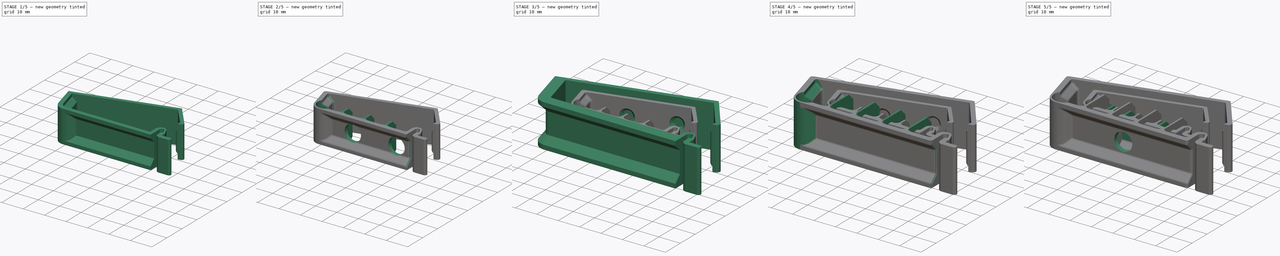
[diagram: build sequence overview — one tinted view per stage of 5, left to right]
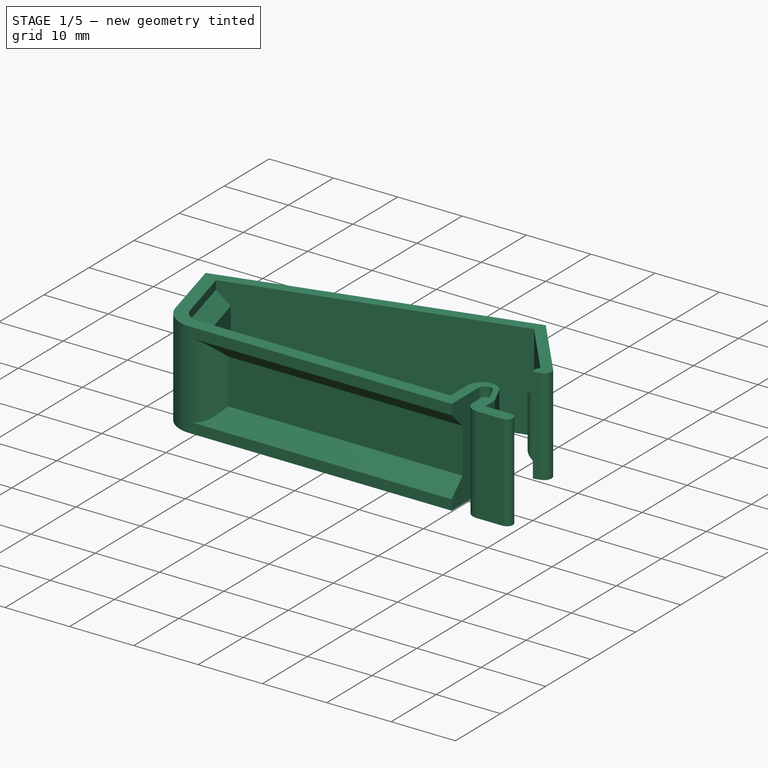
[diagram: stage 1 of 5 — iso view after this stage's code; geometry added in this stage tinted green]
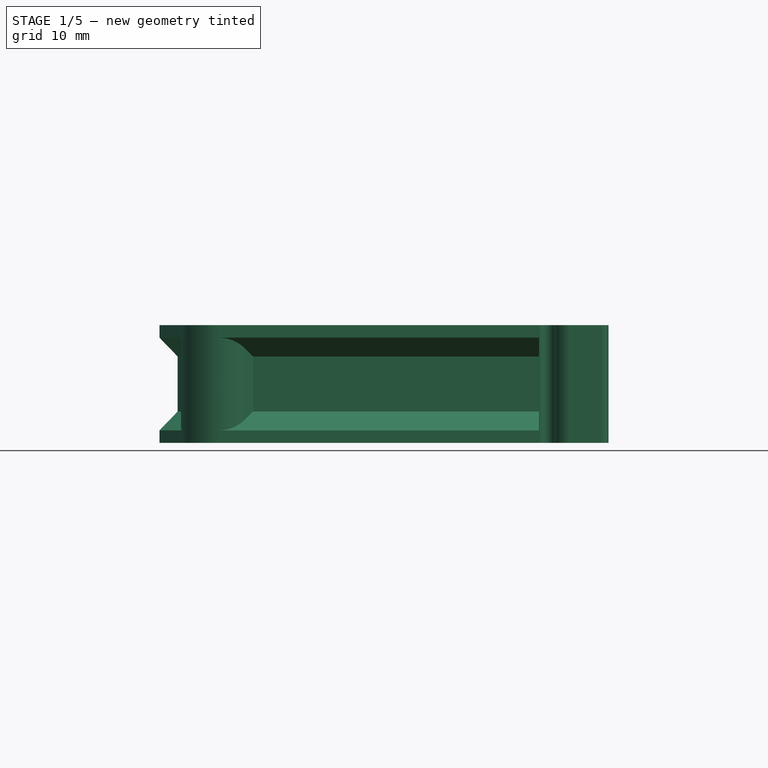
[diagram: stage 1 of 5 — front view after this stage's code; geometry added in this stage tinted green]
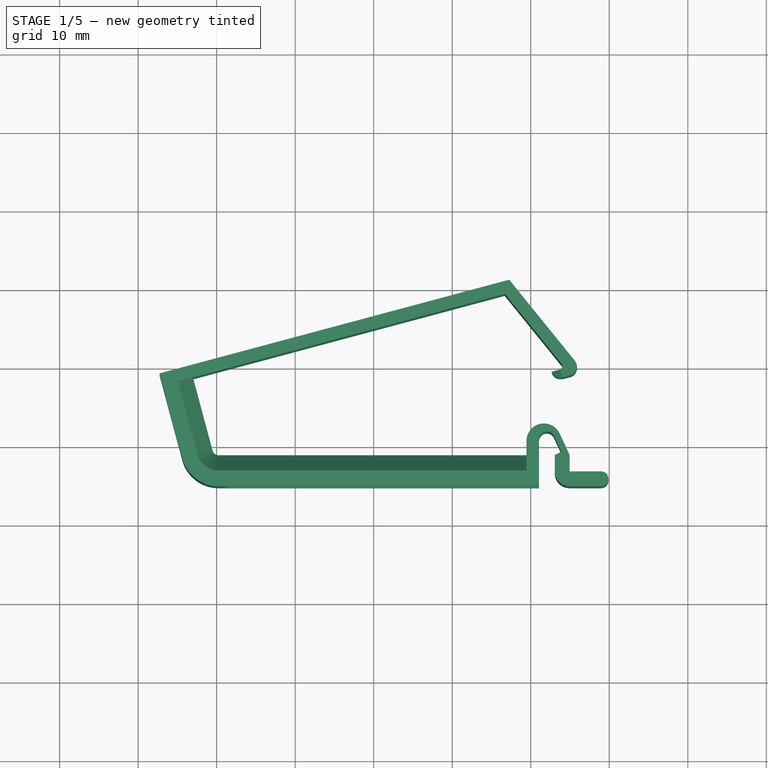
[diagram: stage 1 of 5 — top view after this stage's code; geometry added in this stage tinted green]
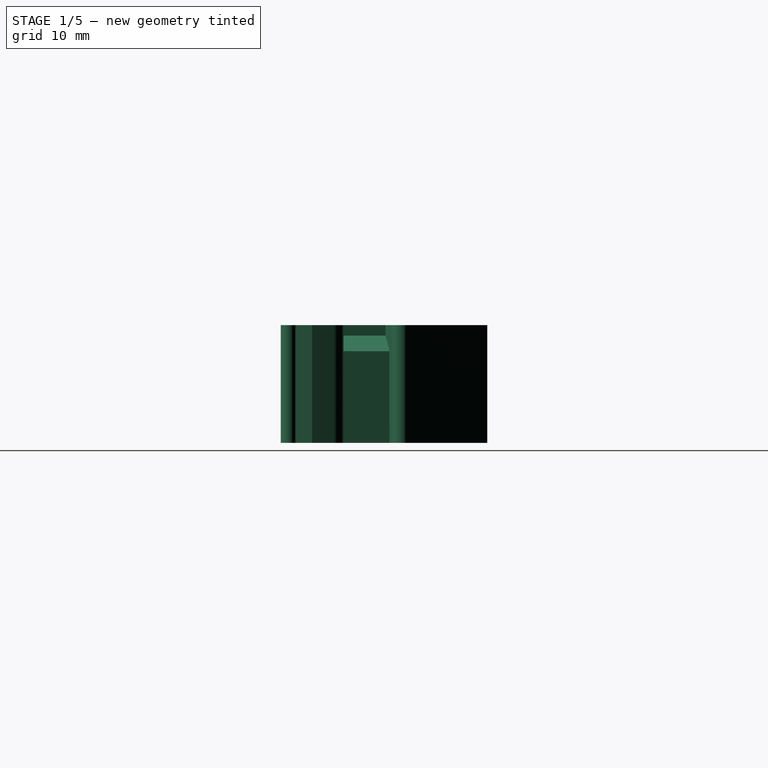
[diagram: stage 1 of 5 — right view after this stage's code; geometry added in this stage tinted green]
FCSTD DOCUMENT  (FreeCAD 1.0R39109 (Git))
Label: CableMount
License: All rights reserved
LicenseURL: http://en.wikipedia.org/wiki/All_rights_reserved
objects: Sketcher::SketchObject×33, PartDesign::Plane×10, PartDesign::Pocket×10, PartDesign::ShapeBinder×10, PartDesign::Pad×9, PartDesign::Body×7, PartDesign::SubtractivePipe×6, PartDesign::Fillet×5, PartDesign::FeatureBase×5, PartDesign::Chamfer×4, PartDesign::LinearPattern×3, Spreadsheet::Sheet×1
note: 211 computed .brp shape members not serialized (recipe doc carries the construction recipe); baked Part::Feature solids carry a one-line shape summary decoded from their .brp

FEATURE [Sketcher::SketchObject] Sketch  label="B40_Template"
  ArcFitTolerance = 0
  AttachmentSupport = -> [XY_Plane]
  FullyConstrained = true
  MakeInternals = false
  MapMode = 5
  expr: .Constraints.Ah = 90 ° - .Constraints.A1
  expr: .Constraints.Al = .Constraints.A1 + 90 °
  expr: Constraints[121] = .Constraints.Al - 1 °
  expr: Constraints[137] = .Constraints.Ah
  expr: Constraints[94] = .Constraints.Rh - 0.8 mm
  sketch-geometry (70):
    g0: LineSegment StartX=-19.7452 StartY=-11.2 StartZ=0 EndX=19.4548 EndY=-11.2 EndZ=0
    g1: LineSegment StartX=21.0548 StartY=-15.2 StartZ=0 EndX=-19.7452 EndY=-15.2 EndZ=0
    g2: ArcOfCircle [constr] CenterX=-19.7452 CenterY=-10.4 CenterZ=0 NormalX=0 NormalY=0 NormalZ=1 AngleXU=0 Radius=4.8 StartAngle=3.14159 EndAngle=4.71239
    g3: LineSegment [constr] StartX=-24.5452 StartY=-10.4 StartZ=0 EndX=-20.5452 EndY=-10.4 EndZ=0
    g4: LineSegment [constr] StartX=-19.7452 StartY=-11.2 StartZ=0 EndX=-19.7452 EndY=-15.2 EndZ=0
    g5: LineSegment StartX=19.4548 StartY=-11.2 StartZ=0 EndX=19.4548 EndY=-9.41941 EndZ=0
    g6: ArcOfCircle CenterX=21.6743 CenterY=-9.41941 CenterZ=0 NormalX=0 NormalY=0 NormalZ=1 AngleXU=0 Radius=2.21941 StartAngle=0.436332 EndAngle=3.14159
    g7: ArcOfCircle CenterX=22.0546 CenterY=-9.24206 CenterZ=0 NormalX=0 NormalY=0 NormalZ=1 AngleXU=0 Radius=0.999756 StartAngle=0.436332 EndAngle=3.14159
    g8: LineSegment StartX=22.9607 StartY=-8.81954 StartZ=0 EndX=23.8904 EndY=-10.8134 EndZ=0
    g9: LineSegment StartX=23.6857 StartY=-8.48145 StartZ=0 EndX=24.9548 EndY=-11.2031 EndZ=0
    g10: LineSegment StartX=21.0548 StartY=-15.2 StartZ=0 EndX=21.0548 EndY=-9.24206 EndZ=0
    g11: LineSegment StartX=24.9548 StartY=-11.2031 StartZ=0 EndX=24.9548 EndY=-13.3 EndZ=0
    g12: LineSegment [constr] StartX=19.4548 StartY=-11.2 StartZ=0 EndX=21.0548 EndY=-11.2 EndZ=0
    g13: LineSegment StartX=23.0548 StartY=-11.2031 StartZ=0 EndX=23.0548 EndY=-13.3 EndZ=0
    g14: LineSegment StartX=23.0548 StartY=-11.2031 StartZ=0 EndX=23.8904 EndY=-10.8134 EndZ=0
    g15: LineSegment [constr] StartX=22.9607 StartY=-8.81954 StartZ=0 EndX=23.6857 EndY=-8.48145 EndZ=0
    g16: LineSegment [constr] StartX=23.0548 StartY=-11.2031 StartZ=0 EndX=24.9548 EndY=-11.2031 EndZ=0
    g17: ArcOfCircle CenterX=24.9548 CenterY=-13.3 CenterZ=0 NormalX=0 NormalY=0 NormalZ=1 AngleXU=0 Radius=1.9 StartAngle=3.14159 EndAngle=4.71239
    g18: LineSegment [constr] StartX=24.9548 StartY=-13.3 StartZ=0 EndX=24.9548 EndY=-15.2 EndZ=0
    g19: LineSegment [constr] StartX=19.4548 StartY=-7.2 StartZ=0 EndX=21.6743 EndY=-7.2 EndZ=0
    g20: LineSegment [constr] StartX=19.4548 StartY=-11.2 StartZ=0 EndX=19.4548 EndY=-15.2 EndZ=0
    g21: LineSegment StartX=24.9548 StartY=-13.3 StartZ=0 EndX=28.9548 EndY=-13.3 EndZ=0
    g22: LineSegment StartX=24.9548 StartY=-15.2 StartZ=0 EndX=28.9548 EndY=-15.2 EndZ=0
    g23: LineSegment [constr] StartX=28.9548 StartY=-13.3 StartZ=0 EndX=28.9548 EndY=-15.2 EndZ=0
    g24: ArcOfCircle CenterX=28.9548 CenterY=-14.25 CenterZ=0 NormalX=0 NormalY=0 NormalZ=1 AngleXU=0 Radius=0.95 StartAngle=4.71239 EndAngle=7.85398
    g25: LineSegment [constr] StartX=-20.5452 StartY=-10.4 StartZ=0 EndX=-20.5452 EndY=-0.8 EndZ=0
    g26: LineSegment [constr] StartX=-24.5452 StartY=-10.4 StartZ=0 EndX=-24.5452 EndY=0.8 EndZ=0
    g27: LineSegment [constr] StartX=-20.5452 StartY=-0.8 StartZ=0 EndX=20.5452 EndY=-0.8 EndZ=0
    g28: LineSegment [constr] StartX=-24.5452 StartY=0.8 StartZ=0 EndX=21.5645 EndY=0.8 EndZ=0
    g29: LineSegment [constr] StartX=-20.5452 StartY=-0.8 StartZ=0 EndX=-20.5452 EndY=0.8 EndZ=0
    g30: LineSegment [constr] StartX=20.5452 StartY=-0.8 StartZ=0 EndX=25.4106 EndY=-11.234 EndZ=0
    g31: LineSegment [constr] StartX=21.5645 StartY=0.8 StartZ=0 EndX=27.1863 EndY=-11.2561 EndZ=0
    g32: LineSegment [constr] StartX=20.5452 StartY=-0.8 StartZ=0 EndX=21.9953 EndY=-0.123811 EndZ=0
    g33: LineSegment [constr] StartX=25.0481 StartY=-12.8963 StartZ=0 EndX=26.1414 EndY=-12.8963 EndZ=0
    g34: ArcOfCircle [constr] CenterX=26.1414 CenterY=-11.7434 CenterZ=0 NormalX=0 NormalY=0 NormalZ=1 AngleXU=0 Radius=1.15298 StartAngle=4.71239 EndAngle=6.71952
    g35: ArcOfCircle [constr] CenterX=25.0481 CenterY=-11.4031 CenterZ=0 NormalX=0 NormalY=0 NormalZ=1 AngleXU=0 Radius=0.4 StartAngle=4.71239 EndAngle=6.71952
    g36: LineSegment [constr] StartX=25.0481 StartY=-11.8031 StartZ=0 EndX=25.0481 EndY=-12.8963 EndZ=0
    g37: ArcOfCircle [constr] CenterX=25.0481 CenterY=-11.8031 CenterZ=0 NormalX=0 NormalY=0 NormalZ=1 AngleXU=0 Radius=1.09326 StartAngle=3.14159 EndAngle=4.71239
    g38: GeomPoint [constr] X=19.4548 Y=-10.4 Z=0
    g39: LineSegment [constr] StartX=-20.5452 StartY=-0.8 StartZ=0 EndX=-24.5452 EndY=-0.8 EndZ=0
    g40: GeomPoint [constr] X=-24.5452 Y=-15.2 Z=0
    g41: Circle CenterX=-19.7452 CenterY=-10.4 CenterZ=0 NormalX=0 NormalY=0 NormalZ=1 AngleXU=0 Radius=4
    g42: LineSegment StartX=24.9548 StartY=-11.7031 StartZ=0 EndX=23.8548 EndY=-11.7031 EndZ=0
    g43: LineSegment [constr] StartX=23.9548 StartY=-11.8031 StartZ=0 EndX=23.9548 EndY=-11.7031 EndZ=0
    g44: LineSegment [constr] StartX=24.9548 StartY=-11.2031 StartZ=0 EndX=25.3174 EndY=-11.034 EndZ=0
    g45: LineSegment StartX=24.9548 StartY=-13.3 StartZ=0 EndX=23.8548 EndY=-13.3 EndZ=0
    g46: LineSegment [constr] StartX=23.8548 StartY=-13.3 StartZ=0 EndX=23.0548 EndY=-13.3 EndZ=0
    g47: LineSegment StartX=23.8548 StartY=-11.7031 StartZ=0 EndX=23.8548 EndY=-13.3 EndZ=0
    g48: LineSegment [constr] StartX=23.9548 StartY=-11.8031 StartZ=0 EndX=23.8548 EndY=-11.8031 EndZ=0
    g49: LineSegment StartX=-27.2804 StartY=-0.823962 StartZ=0 EndX=17.2581 EndY=11.1101 EndZ=0
    g50: LineSegment StartX=-23.0026 StartY=-1.33417 StartZ=0 EndX=16.6876 EndY=9.30079 EndZ=0
    g51: LineSegment [constr] StartX=25.0481 StartY=-11.8031 StartZ=0 EndX=23.9548 EndY=-11.8031 EndZ=0
    g52: LineSegment StartX=16.6876 StartY=9.30079 StartZ=0 EndX=23.9328 EndY=0.353766 EndZ=0
    g53: LineSegment StartX=17.2581 StartY=11.1101 StartZ=0 EndX=25.6296 EndY=0.772171 EndZ=0
    g54: GeomPoint [constr] X=24.9548 Y=-11.8031 Z=0
    g55: ArcOfCircle CenterX=24.7336 CenterY=0.046578 CenterZ=0 NormalX=0 NormalY=0 NormalZ=1 AngleXU=0 Radius=1.15298 StartAngle=4.95674 EndAngle=6.96386
    g56: LineSegment StartX=25.0125 StartY=-1.07215 StartZ=0 EndX=23.9517 EndY=-1.33664 EndZ=0
    g57: ArcOfCircle CenterX=23.6219 CenterY=0.102038 CenterZ=0 NormalX=0 NormalY=0 NormalZ=1 AngleXU=0 Radius=0.4 StartAngle=4.95674 EndAngle=6.96386
    g58: LineSegment StartX=23.7187 StartY=-0.286081 StartZ=0 EndX=22.6746 EndY=-0.546408 EndZ=0
    g59: ArcOfCircle CenterX=23.7187 CenterY=-0.286081 CenterZ=0 NormalX=0 NormalY=0 NormalZ=1 AngleXU=0 Radius=1.07608 StartAngle=3.38594 EndAngle=4.93064
    g60: ArcOfCircle [constr] CenterX=-19.7452 CenterY=-10.4 CenterZ=0 NormalX=0 NormalY=0 NormalZ=1 AngleXU=0 Radius=0.8 StartAngle=3.14159 EndAngle=4.71239
    g61: ArcOfCircle CenterX=-19.7452 CenterY=-10.4 CenterZ=0 NormalX=0 NormalY=0 NormalZ=1 AngleXU=0 Radius=0.8 StartAngle=3.40339 EndAngle=4.71239
    g62: ArcOfCircle CenterX=-19.7452 CenterY=-10.4 CenterZ=0 NormalX=0 NormalY=0 NormalZ=1 AngleXU=0 Radius=4.8 StartAngle=3.40339 EndAngle=4.71239
    g63: LineSegment [constr] StartX=-19.7452 StartY=-10.4 StartZ=0 EndX=-24.3816 EndY=-11.6423 EndZ=0
    g64: LineSegment StartX=-24.3816 StartY=-11.6423 StartZ=0 EndX=-27.2804 EndY=-0.823962 EndZ=0
    g65: LineSegment StartX=-20.5179 StartY=-10.6071 StartZ=0 EndX=-23.0026 EndY=-1.33417 EndZ=0
    g66: GeomPoint [constr] X=-20.5452 Y=-15.2 Z=0
    g67: LineSegment [constr] StartX=19.4548 StartY=-9.41941 StartZ=0 EndX=19.4548 EndY=-0.8 EndZ=0
    g68: ArcOfCircle [constr] CenterX=-19.7452 CenterY=-10.4 CenterZ=0 NormalX=0 NormalY=0 NormalZ=1 AngleXU=0 Radius=40.3584 StartAngle=0.240171 EndAngle=0.50197
    g69: LineSegment StartX=15.6345 StartY=9.01859 StartZ=0 EndX=15.2204 EndY=10.5641 EndZ=0
  constraints (187):
    c: Coincident(g3,g2)
    c: Coincident(g5,g0)
    c: DistanceX(g5,g10) = 1.6
    c: Tangent(g10,g7) = 1.5708
    c: Tangent(g5,g6) = 1.5708
    c: Parallel(g8,g9)
    c: Tangent(g7,g8) = 1.5708
    c: Tangent(g6,g9) = 1.5708
    c: Angle(g10,g8) = 0.436332  'A1'
    c: Coincident(g12,g0)
    c: Horizontal(g12)
    c: Perpendicular(g8,g14)
    c: Coincident(g15,g7)
    c: Distance(g15) = 0.8
    c: Coincident(g16,g13)
    c: Coincident(g17,g13)
    c: Coincident(g46,g13)
    c: Coincident(g18,g17)
    c: PointOnObject(g17,g1)
    c: PointOnObject(g21,g18)
    c: PointOnObject(g12,g10)
    c: Horizontal(g19)
    c: Tangent(g19,g6) = 1.5708
    c: PointOnObject(g19,g5)
    c: Coincident(g20,g0)
    c: PointOnObject(g20,g1)
    c: Symmetric(g20,g19,g0)
    c: Distance(g8,g7) = 2.2
    c: Coincident(g22,g17)
    c: Coincident(g23,g21)
    c: Coincident(g23,g22)
    c: PointOnObject(g24,g23)
    c: Coincident(g24,g21)
    c: Coincident(g24,g22)
    c: Coincident(g6,g15)
    c: PointOnObject(g7,g15)
    c: Coincident(g27,g25)
    c: Coincident(g28,g26)
    c: Tangent(g26,g2) = 1.5708
    c: Perpendicular(g26,g28)
    c: Coincident(g29,g25)
    c: PointOnObject(g29,g28)
    c: Distance(g29) = 1.6  'Tl'
    c: PointOnObject(g29,g25)
    c: DistanceX(g17,g22) = 4
    c: Perpendicular(g25,g27)
    c: Coincident(g30,g27)
    c: Angle(g27,g30) = 2.00713  'Al'
    c: Coincident(g31,g28)
    c: Parallel(g31,g30)
    c: Coincident(g32,g27)
    c: PointOnObject(g32,g31)
    c: Perpendicular(g31,g32)
    c: Equal(g32,g29)
    c: Tangent(g31,g34) = 1.5708
    c: Tangent(g33,g34) = -1.5708
    c: Tangent(g30,g35) = 1.5708
    c: Tangent(g51,g35) = 1.5708
    c: Angle(g31,g33) = 1.13446  'Ah'
    c: Coincident(g36,g51)
    c: Radius(g35) = 0.4
    c: Coincident(g37,g33)
    c: Coincident(g37,g51)
    c: Coincident(g33,g36)
    c: Perpendicular(g5,g0)
    c: Perpendicular(g1,g10)
    c: Parallel(g13,g10)
    c: Parallel(g11,g13)
    c: Perpendicular(g11,g21)
    c: Perpendicular(g13,g22)
    c: Perpendicular(g21,g18)
    c: Perpendicular(g11,g16)
    c: Perpendicular(g21,g23)
    c: Parallel(g0,g1)
    c: Horizontal(g1)
    c: Coincident(g1,g10)
    c: DistanceX(g1,g13) = 2
    c: Coincident(g13,g14)
    c: Coincident(g8,g14)
    c: Coincident(g9,g11)
    c: Coincident(g9,g16)
    c: Coincident(g45,g18)
    c: Coincident(g45,g17)
    c: Coincident(g11,g21)
    c: PointOnObject(g38,g20)
    c: PointOnObject(g38,g3)
    c: Coincident(g39,g25)
    c: PointOnObject(g39,g26)
    c: Perpendicular(g26,g39)
    c: Parallel(g25,g26)
    c: PointOnObject(g40,g26)
    c: PointOnObject(g40,g1)
    c: Distance(g40,g26) = 16
    c: Symmetric(g27,g29,g-1)  '__*@#@*__'
    c: Radius(g41) = 4
    c: PointOnObject(g42,g11)
    c: PointOnObject(g43,g42)
    c: Coincident(g44,g9)
    c: PointOnObject(g44,g30)
    c: Perpendicular(g30,g44)
    c: Distance(g44) = 0.4
    c: Distance(g43) = 0.1
    c: Coincident(g45,g46)
    c: PointOnObject(g11,g45)
    c: Perpendicular(g11,g45)
    c: Perpendicular(g11,g46)
    c: Coincident(g47,g42)
    c: Coincident(g45,g47)
    c: Parallel(g47,g11)
    c: Perpendicular(g47,g48)
    c: Parallel(g49,g50)
    c: Equal(g28,g49)
    c: Equal(g27,g50)
    c: Perpendicular(g51,g36)
    c: Parallel(g51,g42)
    c: Perpendicular(g51,g43)
    c: Parallel(g36,g11)
    c: Equal(g48,g43)
    c: PointOnObject(g48,g47)
    c: Coincident(g52,g50)
    c: Coincident(g53,g49)
    c: Angle(g50,g52) = 1.98968
    c: Parallel(g52,g53)
    c: Equal(g30,g52)
    c: Equal(g31,g53)
    c: Coincident(g51,g37)
    c: PointOnObject(g54,g11)
    c: PointOnObject(g54,g51)
    c: Distance(g54,g37) = 1
    c: Coincident(g43,g37)
    c: Coincident(g37,g48)
    c: Distance(g45,g13) = 0.8
    c: Distance(g54,g9) = 0.6
    c: Equal(g33,g51)
    c: Tangent(g53,g55) = 1.5708
    c: Equal(g55,g34)
    c: Tangent(g55,g56) = 1.5708
    c: Angle(g53,g56) = 1.13446
    c: Equal(g33,g56)
    c: Tangent(g52,g57) = 1.5708
    c: Equal(g57,g35)
    c: Tangent(g57,g58) = 1.5708
    c: Parallel(g58,g56)
    c: Coincident(g59,g57)
    c: Coincident(g59,g56)
    c: Coincident(g59,g58)
    c: Tangent(g1,g2) = 1.5708
    c: Coincident(g3,g25)
    c: Coincident(g4,g0)
    c: Coincident(g4,g1)
    c: Perpendicular(g0,g25)
    c: Coincident(g60,g2)
    c: Coincident(g60,g3)
    c: Tangent(g60,g0) = -1.5708
    c: DistanceY(g1,g12) = 4  'Tb'
    c: Radius(g2) = 4.8  'Rh'
    c: Coincident(g41,g2)
    c: Coincident(g61,g41)
    c: Coincident(g61,g0)
    c: Coincident(g62,g41)
    c: Coincident(g62,g1)
    c: Coincident(g63,g41)
    c: Coincident(g63,g62)
    c: PointOnObject(g61,g63)
    c: Angle(g63,g4) = 1.309
    c: Coincident(g64,g49)
    c: Coincident(g65,g61)
    c: Coincident(g65,g50)
    c: Tangent(g64,g62) = 1.5708
    c: Parallel(g64,g65)
    c: Equal(g64,g26)
    c: Equal(g65,g25)
    c: Perpendicular(g65,g50)
    c: PointOnObject(g66,g25)
    c: PointOnObject(g66,g1)
    c: DistanceX(g66,g20) = 40  'Lb'
    c: Perpendicular(g4,g3)
    c: Radius(g61) = 0.8  'Rhi'
    c: Coincident(g67,g5)
    c: Vertical(g67)
    c: PointOnObject(g67,g27)
    c: Coincident(g68,g2)
    c: Coincident(g68,g67)
    c: PointOnObject(g68,g50)
    c: Coincident(g69,g68)
    c: PointOnObject(g69,g49)
    c: Perpendicular(g50,g69)
FEATURE [Sketcher::SketchObject] Sketch001  label="B40_Base"
  ArcFitTolerance = 0
  AttachmentSupport = -> [XY_Plane]
  ExternalGeometry = -> [Sketch]
  FullyConstrained = true
  MakeInternals = false
  MapMode = 5
  sketch-geometry (27):
    g0: ArcOfCircle CenterX=-19.7452 CenterY=-10.4 CenterZ=0 NormalX=0 NormalY=0 NormalZ=1 AngleXU=0 Radius=0.8 StartAngle=3.40339 EndAngle=4.71239
    g1: ArcOfCircle CenterX=-19.7452 CenterY=-10.4 CenterZ=0 NormalX=0 NormalY=0 NormalZ=1 AngleXU=0 Radius=4.8 StartAngle=3.40339 EndAngle=4.71239
    g2: ArcOfCircle CenterX=21.6743 CenterY=-9.41941 CenterZ=0 NormalX=0 NormalY=0 NormalZ=1 AngleXU=0 Radius=2.21941 StartAngle=0.436332 EndAngle=3.14159
    g3: ArcOfCircle CenterX=22.0546 CenterY=-9.24206 CenterZ=0 NormalX=0 NormalY=0 NormalZ=1 AngleXU=0 Radius=0.999756 StartAngle=0.436332 EndAngle=3.14159
    g4: ArcOfCircle CenterX=28.9548 CenterY=-14.25 CenterZ=0 NormalX=0 NormalY=0 NormalZ=1 AngleXU=0 Radius=0.95 StartAngle=4.7124 EndAngle=7.85397
    g5: ArcOfCircle CenterX=24.9548 CenterY=-13.3 CenterZ=0 NormalX=0 NormalY=0 NormalZ=1 AngleXU=0 Radius=1.9 StartAngle=3.14159 EndAngle=4.71239
    g6: LineSegment StartX=23.6857 StartY=-8.48145 StartZ=0 EndX=24.9548 EndY=-11.2031 EndZ=0
    g7: LineSegment StartX=24.9548 StartY=-11.2031 StartZ=0 EndX=24.9548 EndY=-13.3 EndZ=0
    g8: LineSegment StartX=24.9548 StartY=-13.3 StartZ=0 EndX=28.9548 EndY=-13.3 EndZ=0
    g9: LineSegment StartX=28.9548 StartY=-15.2 StartZ=0 EndX=24.9548 EndY=-15.2 EndZ=0
    g10: LineSegment StartX=23.0548 StartY=-13.3 StartZ=0 EndX=23.0548 EndY=-11.2031 EndZ=0
    g11: LineSegment StartX=23.0548 StartY=-11.2031 StartZ=0 EndX=23.8904 EndY=-10.8134 EndZ=0
    g12: LineSegment StartX=23.8904 StartY=-10.8134 StartZ=0 EndX=22.9607 EndY=-8.81954 EndZ=0
    g13: LineSegment StartX=21.0548 StartY=-9.24206 StartZ=0 EndX=21.0548 EndY=-15.2 EndZ=0
    g14: LineSegment StartX=21.0548 StartY=-15.2 StartZ=0 EndX=-19.7452 EndY=-15.2 EndZ=0
    g15: LineSegment StartX=19.4548 StartY=-9.41941 StartZ=0 EndX=19.4548 EndY=-11.2 EndZ=0
    g16: LineSegment StartX=19.4548 StartY=-11.2 StartZ=0 EndX=-19.7452 EndY=-11.2 EndZ=0
    g17: ArcOfCircle CenterX=24.7336 CenterY=0.046578 CenterZ=0 NormalX=0 NormalY=0 NormalZ=1 AngleXU=0 Radius=1.15298 StartAngle=4.95674 EndAngle=6.96386
    g18: ArcOfCircle CenterX=23.6219 CenterY=0.102038 CenterZ=0 NormalX=0 NormalY=0 NormalZ=1 AngleXU=0 Radius=0.4 StartAngle=4.95674 EndAngle=6.96386
    g19: LineSegment StartX=23.9517 StartY=-1.33664 StartZ=0 EndX=25.0125 EndY=-1.07215 EndZ=0
    g20: LineSegment StartX=-24.3816 StartY=-11.6423 StartZ=0 EndX=-27.2804 EndY=-0.823962 EndZ=0
    g21: LineSegment StartX=-27.2804 StartY=-0.823962 StartZ=0 EndX=17.2581 EndY=11.1101 EndZ=0
    g22: LineSegment StartX=17.2581 StartY=11.1101 StartZ=0 EndX=25.6296 EndY=0.772171 EndZ=0
    g23: LineSegment StartX=23.9328 StartY=0.353766 StartZ=0 EndX=16.6876 EndY=9.30079 EndZ=0
    g24: LineSegment StartX=16.6876 StartY=9.30079 StartZ=0 EndX=-23.0026 EndY=-1.33417 EndZ=0
    g25: LineSegment StartX=-23.0026 StartY=-1.33417 StartZ=0 EndX=-20.5179 EndY=-10.6071 EndZ=0
    g26: LineSegment StartX=23.7187 StartY=-0.286081 StartZ=0 EndX=23.9517 EndY=-1.33664 EndZ=0
  constraints (62):
    c: Coincident(g0,g-9)
    c: Coincident(g0,g-10)
    c: Coincident(g1,g-8)
    c: Coincident(g1,g-11)
    c: Equal(g-9,g0)
    c: Equal(g-8,g1)
    c: Coincident(g2,g-6)
    c: Coincident(g2,g-6)
    c: Coincident(g3,g-5)
    c: Coincident(g3,g-5)
    c: Coincident(g4,g-3)
    c: Coincident(g4,g-3)
    c: Coincident(g5,g-4)
    c: Coincident(g5,g-4)
    c: Equal(g-3,g4)
    c: Equal(g-4,g5)
    c: Equal(g-5,g3)
    c: Equal(g-6,g2)
    c: Coincident(g2,g6)
    c: Coincident(g6,g-15)
    c: Coincident(g6,g7)
    c: Coincident(g7,g5)
    c: Coincident(g7,g8)
    c: Coincident(g8,g4)
    c: Coincident(g4,g9)
    c: Coincident(g9,g5)
    c: Coincident(g5,g10)
    c: Coincident(g10,g-16)
    c: Coincident(g10,g11)
    c: Coincident(g11,g-16)
    c: Coincident(g11,g12)
    c: Coincident(g12,g3)
    c: Coincident(g3,g13)
    c: Coincident(g13,g-11)
    c: Coincident(g13,g14)
    c: Coincident(g14,g1)
    c: Coincident(g2,g15)
    c: Coincident(g15,g-10)
    c: Coincident(g15,g16)
    c: Coincident(g16,g0)
    c: Coincident(g17,g-7)
    c: Coincident(g17,g-7)
    c: Coincident(g18,g-14)
    c: Coincident(g18,g-14)
    c: Equal(g-14,g18)
    c: Equal(g-7,g17)
    c: Coincident(g19,g17)
    c: Coincident(g1,g20)
    c: Coincident(g20,g-12)
    c: Coincident(g20,g21)
    c: Coincident(g21,g-12)
    c: Coincident(g21,g22)
    c: Coincident(g22,g17)
    c: Coincident(g18,g23)
    c: Coincident(g23,g-13)
    c: Coincident(g23,g24)
    c: Coincident(g24,g-13)
    c: Coincident(g24,g25)
    c: Coincident(g25,g0)
    c: Coincident(g19,g-17)
    c: Coincident(g26,g18)
    c: Coincident(g26,g19)
FEATURE [PartDesign::Pad] Pad  label="_B40_Base"
  Direction = (0,0,1)
  Length = 15
  Length2 = 10
  Midplane = true
  Profile = -> Sketch001
  ReferenceAxis = -> Sketch001 [N_Axis]
  Suppressed = false
  Type = 0
  expr: Length = <<Spreadsheet>>.Width
FEATURE [Sketcher::SketchObject] Sketch003
  ArcFitTolerance = 0
  AttachmentSupport = -> [XY_Plane]
  ExternalGeometry = -> [Sketch]
  FullyConstrained = true
  MakeInternals = false
  MapMode = 5
  sketch-geometry (4):
    g0: LineSegment StartX=21.0548 StartY=-13.2 StartZ=0 EndX=-19.7452 EndY=-13.2 EndZ=0
    g1: ArcOfCircle CenterX=-19.7452 CenterY=-10.4 CenterZ=0 NormalX=0 NormalY=0 NormalZ=1 AngleXU=0 Radius=2.8 StartAngle=3.40339 EndAngle=4.71239
    g2: LineSegment [constr] StartX=-24.3816 StartY=-11.6423 StartZ=0 EndX=-20.5179 EndY=-10.6071 EndZ=0
    g3: LineSegment StartX=-22.4498 StartY=-11.1247 StartZ=0 EndX=-25.3485 EndY=-0.306324 EndZ=0
  constraints (10):
    c: Horizontal(g0)
    c: PointOnObject(g0,g-5)
    c: Symmetric(g-6,g-3,g0)
    c: Coincident(g1,g-6)
    c: Coincident(g1,g0)
    c: Coincident(g2,g-3)
    c: Coincident(g2,g-6)
    c: PointOnObject(g1,g2)
    c: PointOnObject(g3,g-4)
    c: Tangent(g3,g1) = 1.5708
FEATURE [PartDesign::Plane] DatumPlane
  AttachmentSupport = -> [Sketch003]
  Length = 60
  MapMode = 7
  Placement = pos=(21.0548,-13.2,0) rot=(0.57735,0.57735,0.57735;2.0944rad)
  ResizeMode = 0
  Width = 60
FEATURE [Sketcher::SketchObject] Sketch002
  ArcFitTolerance = 0
  AttachmentSupport = -> [DatumPlane]
  ExternalGeometry = -> [Sketch]
  FullyConstrained = true
  MakeInternals = false
  MapMode = 5
  Placement = pos=(21.0548,-13.2,0) rot=(0.57735,0.57735,0.57735;2.0944rad)
  expr: Constraints[1] = <<_B40_Base>>.Length
  sketch-geometry (10):
    g0: LineSegment [constr] StartX=2 StartY=7.5 StartZ=0 EndX=2 EndY=-7.5 EndZ=0
    g1: LineSegment StartX=-2 StartY=-5.9 StartZ=0 EndX=0.4 EndY=-3.5 EndZ=0
    g2: LineSegment StartX=0.4 StartY=-3.5 StartZ=0 EndX=0.4 EndY=3.5 EndZ=0
    g3: LineSegment StartX=0.4 StartY=3.5 StartZ=0 EndX=-2 EndY=5.9 EndZ=0
    g4: LineSegment StartX=-2 StartY=5.9 StartZ=0 EndX=-2 EndY=-5.9 EndZ=0
    g5: LineSegment [constr] StartX=-2 StartY=7.5 StartZ=0 EndX=-2 EndY=5.9 EndZ=0
    g6: LineSegment [constr] StartX=-2 StartY=-7.5 StartZ=0 EndX=-2 EndY=-5.9 EndZ=0
    g7: LineSegment [constr] StartX=-2 StartY=-7.5 StartZ=0 EndX=2 EndY=-7.5 EndZ=0
    g8: LineSegment [constr] StartX=0.4 StartY=3.5 StartZ=0 EndX=2 EndY=3.5 EndZ=0
    g9: LineSegment [constr] StartX=-2 StartY=7.5 StartZ=0 EndX=2 EndY=7.5 EndZ=0
  constraints (28):
    c: Vertical(g0)
    c: DistanceY(g0,g0) = 15
    c: Coincident(g2,g1)
    c: Vertical(g2)
    c: Coincident(g3,g2)
    c: Coincident(g4,g3)
    c: Coincident(g4,g1)
    c: Coincident(g5,g9)
    c: Coincident(g5,g3)
    c: Coincident(g6,g1)
    c: Equal(g6,g5)
    c: Angle(g1,g4) = 0.785398
    c: Equal(g1,g3)
    c: Vertical(g4)
    c: Vertical(g6)
    c: Coincident(g7,g6)
    c: Coincident(g7,g0)
    c: Coincident(g8,g2)
    c: PointOnObject(g8,g0)
    c: Horizontal(g8)
    c: DistanceX(g8,g8) = 1.6
    c: Horizontal(g9)
    c: Coincident(g9,g0)
    c: Equal(g8,g5)
    c: Symmetric(g5,g6,g-1)
    c: Horizontal(g7)
    c: PointOnObject(g-4,g0)
    c: PointOnObject(g-3,g4)
FEATURE [Sketcher::SketchObject] Sketch004  label="B40_InnerPath"
  ArcFitTolerance = 0
  AttachmentSupport = -> [XY_Plane]
  ExternalGeometry = -> [Sketch]
  FullyConstrained = true
  MakeInternals = false
  MapMode = 5
  sketch-geometry (5):
    g0: LineSegment [constr] StartX=19.4548 StartY=-11.2 StartZ=0 EndX=19.4548 EndY=-15.2 EndZ=0
    g1: LineSegment StartX=19.4548 StartY=-13.2 StartZ=0 EndX=-19.7452 EndY=-13.2 EndZ=0
    g2: ArcOfCircle CenterX=-19.7452 CenterY=-10.4 CenterZ=0 NormalX=0 NormalY=0 NormalZ=1 AngleXU=0 Radius=2.8 StartAngle=3.40339 EndAngle=4.71239
    g3: LineSegment StartX=-22.4498 StartY=-11.1247 StartZ=0 EndX=-24.9344 EndY=-1.85181 EndZ=0
    g4: LineSegment [constr] StartX=-24.3816 StartY=-11.6423 StartZ=0 EndX=-20.5179 EndY=-10.6071 EndZ=0
  constraints (13):
    c: Coincident(g2,g1)
    c: Tangent(g3,g2) = 1.5708
    c: Coincident(g0,g-3)
    c: Parallel(g0,g-5)
    c: PointOnObject(g0,g-4)
    c: Parallel(g1,g-4)
    c: Symmetric(g-7,g-6,g1)
    c: Coincident(g2,g-7)
    c: Coincident(g4,g-6)
    c: Coincident(g4,g-7)
    c: PointOnObject(g1,g0)
    c: PointOnObject(g2,g4)
    c: PointOnObject(g3,g-8)
FEATURE [PartDesign::Plane] DatumPlane001  label="B40_InnerSubPlane"
  AttachmentSupport = -> [Sketch004]
  Length = 60
  MapMode = 7
  Placement = pos=(19.4548,-13.2,0) rot=(0.57735,0.57735,0.57735;2.0944rad)
  ResizeMode = 0
  Width = 60
FEATURE [Sketcher::SketchObject] Sketch005
  ArcFitTolerance = 0
  AttachmentSupport = -> [DatumPlane001]
  ExternalGeometry = -> [Sketch002]
  FullyConstrained = true
  MakeInternals = false
  MapMode = 5
  Placement = pos=(19.4548,-13.2,0) rot=(0.57735,0.57735,0.57735;2.0944rad)
  expr: Constraints[14] = <<_B40_Base>>.Length
  sketch-geometry (11):
    g0: LineSegment [constr] StartX=-2 StartY=5.9 StartZ=0 EndX=-2 EndY=7.5 EndZ=0
    g1: LineSegment [constr] StartX=-2 StartY=7.5 StartZ=0 EndX=2.209e-13 EndY=7.5 EndZ=0
    g2: LineSegment StartX=2.209e-13 StartY=7.5 StartZ=0 EndX=2 EndY=7.5 EndZ=0
    g3: LineSegment [constr] StartX=2 StartY=-7.5 StartZ=0 EndX=-2 EndY=-7.5 EndZ=0
    g4: LineSegment [constr] StartX=-2 StartY=-7.5 StartZ=0 EndX=-2 EndY=-5.9 EndZ=0
    g5: LineSegment StartX=2 StartY=7.5 StartZ=0 EndX=2 EndY=4.16274 EndZ=0
    g6: LineSegment [constr] StartX=2 StartY=4.16274 StartZ=0 EndX=2 EndY=-7.5 EndZ=0
    g7: LineSegment StartX=2.209e-13 StartY=7.5 StartZ=0 EndX=-3.81e-14 EndY=6.16274 EndZ=0
    g8: LineSegment StartX=-3.81e-14 StartY=6.16274 StartZ=0 EndX=2 EndY=4.16274 EndZ=0
    g9: LineSegment [constr] StartX=0.4 StartY=3.5 StartZ=0 EndX=2 EndY=3.5 EndZ=0
    g10: LineSegment [constr] StartX=0.4 StartY=3.5 StartZ=0 EndX=1.53137 EndY=4.63137 EndZ=0
  constraints (31):
    c: Coincident(g-3,g0)
    c: Vertical(g0)
    c: Coincident(g0,g1)
    c: PointOnObject(g1,g-2)
    c: Horizontal(g1)
    c: Coincident(g1,g2)
    c: Horizontal(g2)
    c: Coincident(g2,g5)
    c: Coincident(g6,g3)
    c: Horizontal(g3)
    c: Coincident(g3,g4)
    c: Coincident(g4,g-3)
    c: Vertical(g4)
    c: Equal(g0,g4)
    c: DistanceY(g6,g5) = 15
    c: Equal(g1,g2)
    c: Coincident(g5,g6)
    c: Vertical(g5)
    c: Vertical(g6)
    c: Coincident(g7,g1)
    c: PointOnObject(g7,g-2)
    c: Coincident(g8,g7)
    c: Coincident(g8,g5)
    c: Parallel(g8,g-4)
    c: Coincident(g9,g-4)
    c: PointOnObject(g9,g6)
    c: Horizontal(g9)
    c: Coincident(g10,g9)
    c: PointOnObject(g10,g8)
    c: Perpendicular(g8,g10)
    c: Equal(g9,g10)
FEATURE [Sketcher::SketchObject] Sketch006
  ArcFitTolerance = 0
  AttachmentSupport = -> [DatumPlane001]
  ExternalGeometry = -> [Sketch002]
  FullyConstrained = true
  MakeInternals = false
  MapMode = 5
  Placement = pos=(19.4548,-13.2,0) rot=(0.57735,0.57735,0.57735;2.0944rad)
  expr: Constraints[30] = <<_B40_Base>>.Length
  sketch-geometry (11):
    g0: LineSegment [constr] StartX=-2 StartY=5.9 StartZ=0 EndX=-2 EndY=7.5 EndZ=0
    g1: LineSegment [constr] StartX=-2 StartY=7.5 StartZ=0 EndX=2 EndY=7.5 EndZ=0
    g2: LineSegment StartX=2 StartY=-7.5 StartZ=0 EndX=0 EndY=-7.5 EndZ=0
    g3: LineSegment [constr] StartX=0 StartY=-7.5 StartZ=0 EndX=-2 EndY=-7.5 EndZ=0
    g4: LineSegment [constr] StartX=-2 StartY=-7.5 StartZ=0 EndX=-2 EndY=-5.9 EndZ=0
    g5: LineSegment [constr] StartX=2 StartY=7.5 StartZ=0 EndX=2 EndY=-4.16274 EndZ=0
    g6: LineSegment StartX=2 StartY=-4.16274 StartZ=0 EndX=2 EndY=-7.5 EndZ=0
    g7: LineSegment StartX=0 StartY=-7.5 StartZ=0 EndX=0 EndY=-6.16274 EndZ=0
    g8: LineSegment StartX=0 StartY=-6.16274 StartZ=0 EndX=2 EndY=-4.16274 EndZ=0
    g9: LineSegment [constr] StartX=0.4 StartY=-3.5 StartZ=0 EndX=2 EndY=-3.5 EndZ=0
    g10: LineSegment [constr] StartX=0.4 StartY=-3.5 StartZ=0 EndX=1.53137 EndY=-4.63137 EndZ=0
  constraints (31):
    c: Coincident(g-3,g0)
    c: Vertical(g0)
    c: Coincident(g0,g1)
    c: Horizontal(g1)
    c: Coincident(g1,g5)
    c: Coincident(g6,g2)
    c: PointOnObject(g2,g-2)
    c: Horizontal(g2)
    c: Coincident(g2,g3)
    c: Horizontal(g3)
    c: Coincident(g3,g4)
    c: Coincident(g4,g-4)
    c: Vertical(g4)
    c: Equal(g3,g2)
    c: Coincident(g5,g6)
    c: Vertical(g5)
    c: Vertical(g6)
    c: Coincident(g7,g2)
    c: PointOnObject(g7,g-2)
    c: Coincident(g8,g7)
    c: Coincident(g8,g6)
    c: Parallel(g8,g-4)
    c: Coincident(g9,g-4)
    c: PointOnObject(g9,g5)
    c: Horizontal(g9)
    c: Coincident(g10,g9)
    c: PointOnObject(g10,g8)
    c: Perpendicular(g8,g10)
    c: Equal(g10,g9)
    c: Equal(g0,g4)
    c: DistanceY(g2,g1) = 15
FEATURE [Sketcher::SketchObject] Sketch007
  ArcFitTolerance = 0
  AttachmentSupport = -> [XY_Plane]
  ExternalGeometry = -> [Sketch]
  FullyConstrained = true
  MakeInternals = false
  MapMode = 5
  sketch-geometry (8):
    g0: ArcOfCircle CenterX=-19.7452 CenterY=-10.4 CenterZ=0 NormalX=0 NormalY=0 NormalZ=1 AngleXU=0 Radius=4.8 StartAngle=2.61799 EndAngle=5.49779
    g1: LineSegment StartX=-23.9021 StartY=-8 StartZ=0 EndX=-23.1991 EndY=-6.78247 EndZ=0
    g2: LineSegment StartX=-16.351 StartY=-13.7941 StartZ=0 EndX=-15.3569 EndY=-12.8 EndZ=0
    g3: LineSegment [constr] StartX=-24.3816 StartY=-11.6423 StartZ=0 EndX=-19.7452 EndY=-10.4 EndZ=0
    g4: LineSegment [constr] StartX=-19.7452 StartY=-10.4 StartZ=0 EndX=-19.7452 EndY=-15.2 EndZ=0
    g5: ArcOfCircle CenterX=-19.7452 CenterY=-10.4 CenterZ=0 NormalX=0 NormalY=0 NormalZ=1 AngleXU=0 Radius=2.4 StartAngle=3.40339 EndAngle=4.71239
    g6: LineSegment StartX=-19.7452 StartY=-12.8 StartZ=0 EndX=-15.3569 EndY=-12.8 EndZ=0
    g7: LineSegment StartX=-22.0634 StartY=-11.0212 StartZ=0 EndX=-23.1991 EndY=-6.78247 EndZ=0
  constraints (19):
    c: Coincident(g3,g0)
    c: Coincident(g4,g0)
    c: PointOnObject(g6,g4)
    c: Coincident(g5,g0)
    c: Coincident(g5,g6)
    c: Tangent(g7,g5) = 1.5708
    c: Tangent(g0,g2) = -1.5708
    c: Tangent(g0,g1) = 1.5708
    c: Equal(g2,g1)
    c: Coincident(g1,g7)
    c: Coincident(g2,g6)
    c: Angle(g6,g2) = 0.785398
    c: PointOnObject(g4,g0)
    c: Horizontal(g6)
    c: PointOnObject(g5,g3)
    c: Coincident(g3,g-3)
    c: Coincident(g4,g-3)
    c: Coincident(g0,g-3)
    c: Distance(g-4,g5) = 1.6
FEATURE [Sketcher::SketchObject] Sketch008
  ArcFitTolerance = 0
  AttachmentSupport = -> [XY_Plane]
  ExternalGeometry = -> [Sketch,Sketch007]
  FullyConstrained = true
  MakeInternals = false
  MapMode = 5
  sketch-geometry (4):
    g0: ArcOfCircle CenterX=-19.7452 CenterY=-10.4 CenterZ=0 NormalX=0 NormalY=0 NormalZ=1 AngleXU=0 Radius=4 StartAngle=2.61799 EndAngle=5.49779
    g1: LineSegment StartX=-16.9167 StartY=-13.2284 StartZ=0 EndX=-14.8883 EndY=-11.2 EndZ=0
    g2: LineSegment StartX=-23.2093 StartY=-8.4 StartZ=0 EndX=-21.7749 EndY=-5.91569 EndZ=0
    g3: LineSegment StartX=-21.7749 StartY=-5.91569 StartZ=0 EndX=-14.8883 EndY=-11.2 EndZ=0
  constraints (10):
    c: Tangent(g0,g2) = 1.5708
    c: Tangent(g0,g1) = -1.5708
    c: Coincident(g3,g2)
    c: Coincident(g3,g1)
    c: Coincident(g0,g-3)
    c: Parallel(g1,g-5)
    c: Parallel(g2,g-4)
    c: PointOnObject(g0,g-3)
    c: PointOnObject(g2,g-7)
    c: PointOnObject(g1,g-6)
FEATURE [Sketcher::SketchObject] Sketch009  label="B40_LockRidge"
  ArcFitTolerance = 0
  AttachmentSupport = -> [XY_Plane]
  ExternalGeometry = -> [Sketch]
  FullyConstrained = true
  MakeInternals = false
  MapMode = 5
  sketch-geometry (4):
    g0: LineSegment StartX=23.7187 StartY=-0.286081 StartZ=0 EndX=22.6746 EndY=-0.546408 EndZ=0
    g1: LineSegment StartX=22.6746 StartY=-0.546408 StartZ=0 EndX=22.9076 EndY=-1.59696 EndZ=0
    g2: LineSegment StartX=22.9076 StartY=-1.59696 StartZ=0 EndX=23.9517 EndY=-1.33664 EndZ=0
    g3: LineSegment StartX=23.9517 StartY=-1.33664 StartZ=0 EndX=23.7187 EndY=-0.286081 EndZ=0
  constraints (9):
    c: Coincident(g0,g1)
    c: Coincident(g1,g2)
    c: Coincident(g2,g3)
    c: Coincident(g3,g0)
    c: Equal(g2,g0)
    c: Equal(g3,g1)
    c: Coincident(g0,g-3)
    c: Coincident(g0,g-3)
    c: Coincident(g2,g-3)
FEATURE [PartDesign::Pad] Pad002  label="_B40_LockRidge"
  BaseFeature = -> Pad
  Direction = (0,0,1)
  Length = 10
  Length2 = 10
  Midplane = true
  Profile = -> Sketch009
  ReferenceAxis = -> Sketch009 [N_Axis]
  Suppressed = false
  Type = 0
  expr: Length = Pad.Length - 5 mm
FEATURE [PartDesign::Chamfer] Chamfer
  Angle = 45
  Base = -> Pad002 [Edge72,Edge69]
  BaseFeature = -> Pad002
  ChamferType = 0
  FlipDirection = false
  Size = 1.07
  Size2 = 1
  SupportTransform = false
  Suppressed = false
  UseAllEdges = false
FEATURE [Sketcher::SketchObject] Sketch010  label="B40_LockRidgeFillet"
  ArcFitTolerance = 0
  AttachmentSupport = -> [XY_Plane]
  ExternalGeometry = -> [Sketch]
  FullyConstrained = true
  MakeInternals = false
  MapMode = 5
  sketch-geometry (7):
    g0: ArcOfCircle CenterX=23.7187 CenterY=-0.286081 CenterZ=0 NormalX=0 NormalY=0 NormalZ=1 AngleXU=0 Radius=1.07608 StartAngle=3.38594 EndAngle=4.93064
    g1: LineSegment StartX=22.6746 StartY=-0.546408 StartZ=0 EndX=22.6504 EndY=-0.449379 EndZ=0
    g2: LineSegment StartX=23.9517 StartY=-1.33664 StartZ=0 EndX=24.0493 EndY=-1.31498 EndZ=0
    g3: LineSegment StartX=24.0493 StartY=-1.31498 StartZ=0 EndX=24.0735 EndY=-1.41201 EndZ=0
    g4: LineSegment StartX=22.6504 StartY=-0.449379 StartZ=0 EndX=22.5528 EndY=-0.471031 EndZ=0
    g5: LineSegment StartX=22.5528 StartY=-0.471031 StartZ=0 EndX=22.8548 EndY=-1.68231 EndZ=0
    g6: LineSegment StartX=22.8548 StartY=-1.68231 StartZ=0 EndX=24.0735 EndY=-1.41201 EndZ=0
  constraints (18):
    c: Tangent(g2,g0) = -1.5708
    c: Tangent(g1,g0) = 1.5708
    c: Distance(g1) = 0.1
    c: Equal(g1,g2)
    c: Coincident(g3,g2)
    c: Coincident(g4,g1)
    c: Parallel(g4,g2)
    c: Parallel(g3,g1)
    c: Coincident(g5,g4)
    c: Coincident(g6,g5)
    c: Coincident(g6,g3)
    c: Parallel(g1,g5)
    c: Parallel(g6,g2)
    c: Equal(g2,g3)
    c: Equal(g3,g4)
    c: Coincident(g0,g-3)
    c: Coincident(g0,g-3)
    c: Equal(g-3,g0)
FEATURE [PartDesign::Pocket] Pocket001  label="_B40_LockRidgeFillet"
  BaseFeature = -> Chamfer
  Direction = (0,0,-1)
  Length = 5
  Length2 = 5
  Midplane = true
  Profile = -> Sketch010
  ReferenceAxis = -> Sketch010 [N_Axis]
  Refine = true
  Suppressed = false
  Type = 1
FEATURE [Sketcher::SketchObject] Sketch011  label="B40_LockGroove"
  ArcFitTolerance = 0
  AttachmentSupport = -> [XY_Plane]
  ExternalGeometry = -> [Sketch]
  FullyConstrained = true
  MakeInternals = false
  MapMode = 5
  sketch-geometry (4):
    g0: LineSegment StartX=23.8548 StartY=-13.3 StartZ=0 EndX=24.9548 EndY=-13.3 EndZ=0
    g1: LineSegment StartX=24.9548 StartY=-13.3 StartZ=0 EndX=24.9548 EndY=-11.7031 EndZ=0
    g2: LineSegment StartX=24.9548 StartY=-11.7031 StartZ=0 EndX=23.8548 EndY=-11.7031 EndZ=0
    g3: LineSegment StartX=23.8548 StartY=-11.7031 StartZ=0 EndX=23.8548 EndY=-13.3 EndZ=0
  constraints (8):
    c: Coincident(g-3,g0)
    c: Coincident(g0,g-3)
    c: Coincident(g0,g1)
    c: Coincident(g1,g2)
    c: Coincident(g2,g3)
    c: Coincident(g3,g0)
    c: Coincident(g2,g-4)
    c: Coincident(g1,g-4)
FEATURE [PartDesign::Pocket] Pocket002  label="_B40_LockGroove"
  BaseFeature = -> Pocket001
  Direction = (0,0,-1)
  Length = 10.8
  Length2 = 5
  Midplane = true
  Profile = -> Sketch011
  ReferenceAxis = -> Sketch011 [N_Axis]
  Refine = true
  Suppressed = false
  Type = 0
  expr: Length = <<_B40_LockRidge>>.Length + 0.8 mm
FEATURE [PartDesign::SubtractivePipe] SubtractivePipe  label="_B40_WingCentralCut"
  AuxilleryCurvelinear = true
  AuxillerySpineTangent = false
  BaseFeature = -> Pocket002
  Binormal = (0,0,0)
  Mode = 0
  Profile = -> Sketch002
  Spine = -> Sketch003
  SpineTangent = false
  Suppressed = false
  Transformation = 0
  Transition = 0
FEATURE [PartDesign::Pad] Pad001  label="_B40_HingeAdd"
  BaseFeature = -> SubtractivePipe
  Direction = (0,0,1)
  Length = 15
  Length2 = 10
  Midplane = true
  Profile = -> Sketch007
  ReferenceAxis = -> Sketch007 [N_Axis]
  Suppressed = false
  Type = 0
  expr: Length = <<_B40_Base>>.Length
FEATURE [Spreadsheet::Sheet] Spreadsheet
  cells = B2='Width; C2(Width)==15 mm; B3='Ts; C3(Ts)==0.8 mm; D3='Thickness of the separators; B4='Cs4; C4(Cs4)=4; D4='Count of separators (4); B5='Cs5; C5(Cs5)=5; D5='Count of separators (5)
FEATURE [PartDesign::Plane] DatumPlane003  label="B40_SeparatorBasePlane"
  AttachmentOffset = pos=(0,0,-0.4) rot=(0,0,1;0rad)
  AttachmentSupport = -> [Sketch004]
  Length = 60
  MapMode = 7
  Placement = pos=(19.8548,-13.2,0) rot=(0.57735,-0.57735,-0.57735;2.0944rad)
  ResizeMode = 0
  Width = 60
FEATURE [Sketcher::SketchObject] Sketch013  label="B40_Separator"
  ArcFitTolerance = 0
  AttachmentSupport = -> [DatumPlane003]
  ExternalGeometry = -> [Sketch002,Sketch]
  FullyConstrained = true
  MakeInternals = false
  MapMode = 5
  Placement = pos=(19.8548,-13.2,0) rot=(0.57735,-0.57735,-0.57735;2.0944rad)
  expr: Constraints[0] = <<Spreadsheet>>.Width
  sketch-geometry (11):
    g0: LineSegment StartX=2 StartY=7.5 StartZ=0 EndX=-4.53292 EndY=7.5 EndZ=0
    g1: LineSegment StartX=-4.53292 StartY=7.5 StartZ=0 EndX=-6.93292 EndY=5.1 EndZ=0
    g2: LineSegment StartX=-6.93292 StartY=5.1 StartZ=0 EndX=-6.93292 EndY=-5.1 EndZ=0
    g3: LineSegment StartX=-6.93292 StartY=-5.1 StartZ=0 EndX=-4.53292 EndY=-7.5 EndZ=0
    g4: LineSegment StartX=-4.53292 StartY=-7.5 StartZ=0 EndX=2 EndY=-7.5 EndZ=0
    g5: LineSegment StartX=-0.4 StartY=3.5 StartZ=0 EndX=-0.4 EndY=-3.5 EndZ=0
    g6: LineSegment StartX=2 StartY=7.5 StartZ=0 EndX=-0.4 EndY=3.5 EndZ=0
    g7: LineSegment StartX=2 StartY=-7.5 StartZ=0 EndX=-0.4 EndY=-3.5 EndZ=0
    g8: LineSegment [constr] StartX=2 StartY=7.5 StartZ=0 EndX=2 EndY=-7.5 EndZ=0
    g9: LineSegment [constr] StartX=-2 StartY=0 StartZ=0 EndX=-6.93292 EndY=0 EndZ=0
    g10: LineSegment [constr] StartX=-6.93292 StartY=0 StartZ=0 EndX=-11.8658 EndY=0 EndZ=0
  constraints (28):
    c: DistanceY(g4,g0) = 15
    c: Horizontal(g0)
    c: Coincident(g0,g1)
    c: Coincident(g1,g2)
    c: Coincident(g2,g3)
    c: Coincident(g3,g4)
    c: Horizontal(g4)
    c: Equal(g0,g4)
    c: Coincident(g5,g-4)
    c: Coincident(g5,g-3)
    c: Coincident(g6,g0)
    c: Coincident(g6,g5)
    c: Coincident(g7,g4)
    c: Coincident(g7,g5)
    c: Coincident(g8,g0)
    c: Coincident(g8,g4)
    c: Equal(g3,g-4)
    c: Parallel(g3,g-4)
    c: Symmetric(g4,g0,g-5)
    c: Parallel(g1,g-3)
    c: Parallel(g2,g5)
    c: Parallel(g5,g8)
    c: Coincident(g9,g-6)
    c: Coincident(g10,g9)
    c: PointOnObject(g9,g2)
    c: Coincident(g10,g-7)
    c: Equal(g10,g9)
    c: Parallel(g9,g10)
FEATURE [PartDesign::ShapeBinder] ShapeBinder001  label="40x4_Separator"
  Placement = pos=(19.8548,-13.2,0) rot=(0.57735,-0.57735,-0.57735;2.0944rad)
  Support = -> [Sketch013]
  TraceSupport = false
FEATURE [PartDesign::ShapeBinder] ShapeBinder
  Support = -> [Sketch004]
  TraceSupport = false
FEATURE [PartDesign::SubtractivePipe] SubtractivePipe001  label="_B40_WingSide1Cut"
  AuxilleryCurvelinear = true
  AuxillerySpineTangent = false
  BaseFeature = -> Pad001
  Binormal = (0,0,0)
  Mode = 0
  Profile = -> Sketch005
  Spine = -> ShapeBinder
  SpineTangent = false
  Suppressed = false
  Transformation = 0
  Transition = 0
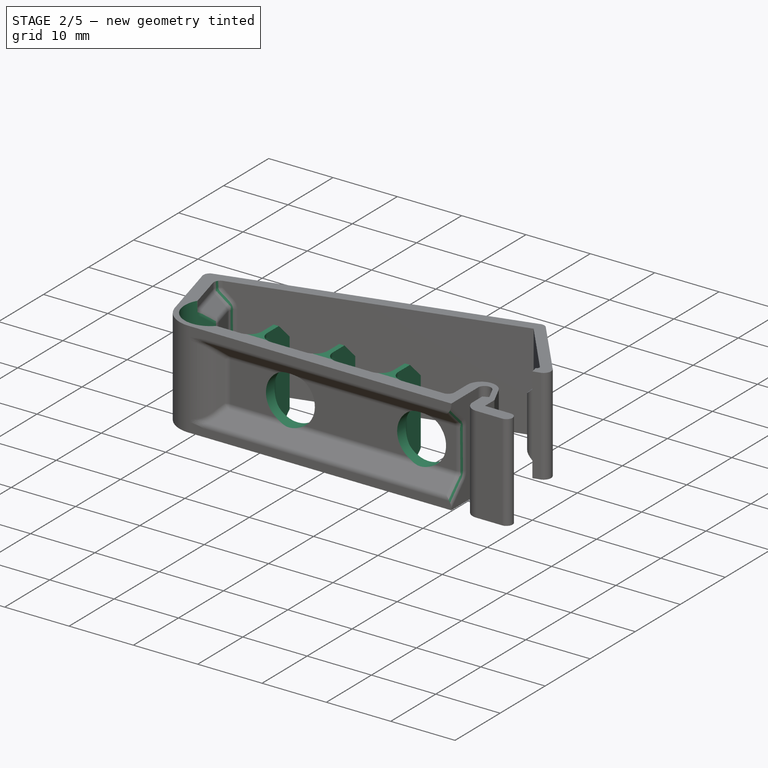
[diagram: stage 2 of 5 — iso view after this stage's code; geometry added in this stage tinted green]
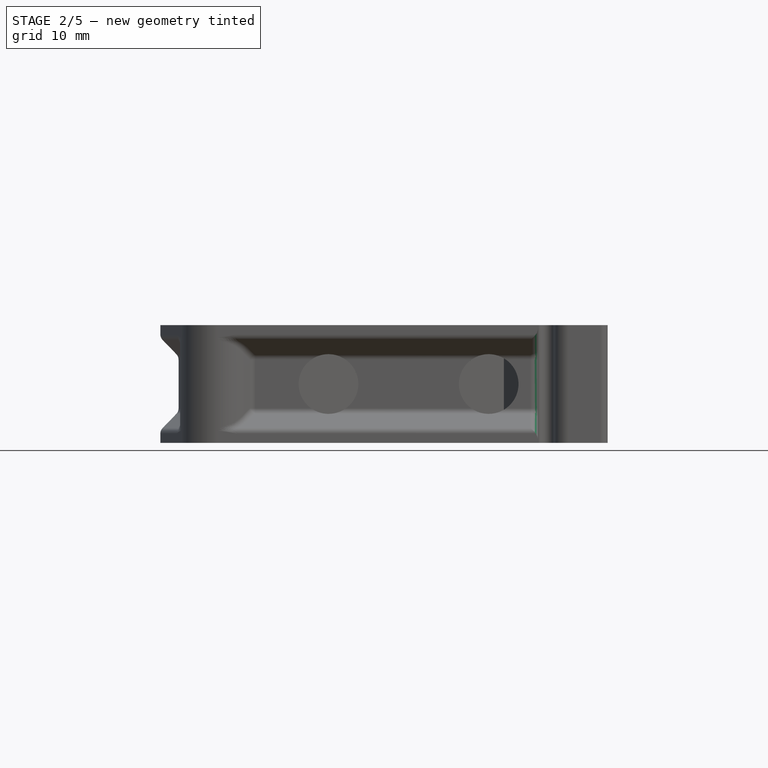
[diagram: stage 2 of 5 — front view after this stage's code; geometry added in this stage tinted green]
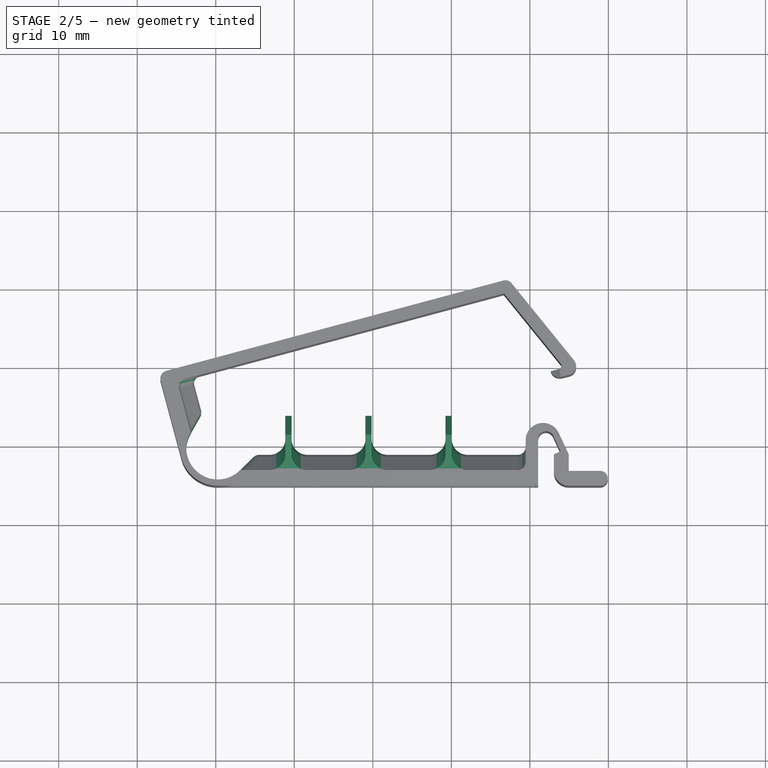
[diagram: stage 2 of 5 — top view after this stage's code; geometry added in this stage tinted green]
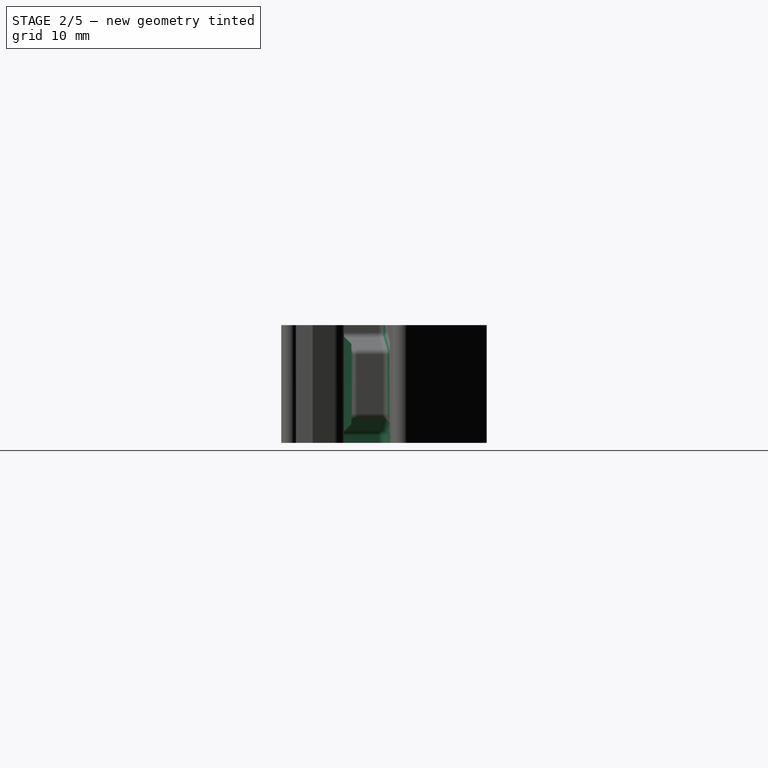
[diagram: stage 2 of 5 — right view after this stage's code; geometry added in this stage tinted green]
FEATURE [PartDesign::SubtractivePipe] SubtractivePipe002  label="_B40_WingSide2Cut"
  AuxilleryCurvelinear = true
  AuxillerySpineTangent = false
  BaseFeature = -> SubtractivePipe001
  Binormal = (0,0,0)
  Mode = 0
  Profile = -> Sketch006
  Refine = true
  Spine = -> ShapeBinder
  SpineTangent = false
  Suppressed = false
  Transformation = 0
  Transition = 0
FEATURE [PartDesign::Pocket] Pocket  label="_B40_HingeSub"
  BaseFeature = -> SubtractivePipe002
  Direction = (0,0,-1)
  Length = 5
  Length2 = 5
  Midplane = true
  Profile = -> Sketch008
  ReferenceAxis = -> Sketch008 [N_Axis]
  Suppressed = false
  Type = 1
FEATURE [PartDesign::ShapeBinder] ShapeBinder002  label="40x4_SeparatorBasePlane"
  Placement = pos=(19.8548,-13.2,0) rot=(0.57735,-0.57735,-0.57735;2.0944rad)
  Support = -> [DatumPlane003]
  TraceSupport = false
FEATURE [Sketcher::SketchObject] Sketch014
  ArcFitTolerance = 0
  AttachmentOffset = pos=(0,0,10.2) rot=(0,0,1;0rad)
  AttachmentSupport = -> [ShapeBinder002]
  ExternalGeometry = -> [ShapeBinder001]
  FullyConstrained = true
  MakeInternals = false
  MapMode = 5
  Placement = pos=(9.65484,-13.2,0) rot=(0.57735,-0.57735,-0.57735;2.0944rad)
  expr: .AttachmentOffset.Base.z = (<<B40_Template>>.Constraints.Lb + <<Spreadsheet>>.Ts) / 4
  sketch-geometry (8):
    g0: LineSegment StartX=-0.4 StartY=3.5 StartZ=0 EndX=2 EndY=7.5 EndZ=0
    g1: LineSegment StartX=2 StartY=7.5 StartZ=0 EndX=-4.53292 EndY=7.5 EndZ=0
    g2: LineSegment StartX=-4.53292 StartY=7.5 StartZ=0 EndX=-6.93292 EndY=5.1 EndZ=0
    g3: LineSegment StartX=-6.93292 StartY=5.1 StartZ=0 EndX=-6.93292 EndY=-5.1 EndZ=0
    g4: LineSegment StartX=-6.93292 StartY=-5.1 StartZ=0 EndX=-4.53292 EndY=-7.5 EndZ=0
    g5: LineSegment StartX=-4.53292 StartY=-7.5 StartZ=0 EndX=2 EndY=-7.5 EndZ=0
    g6: LineSegment StartX=2 StartY=-7.5 StartZ=0 EndX=-0.4 EndY=-3.5 EndZ=0
    g7: LineSegment StartX=-0.4 StartY=-3.5 StartZ=0 EndX=-0.4 EndY=3.5 EndZ=0
  constraints (16):
    c: Coincident(g-4,g0)
    c: Coincident(g0,g-6)
    c: Coincident(g0,g1)
    c: Coincident(g1,g-6)
    c: Coincident(g1,g2)
    c: Coincident(g2,g-3)
    c: Coincident(g2,g3)
    c: Coincident(g3,g-3)
    c: Coincident(g3,g4)
    c: Coincident(g4,g-5)
    c: Coincident(g4,g5)
    c: Coincident(g5,g-5)
    c: Coincident(g5,g6)
    c: Coincident(g6,g-4)
    c: Coincident(g6,g7)
    c: Coincident(g7,g0)
FEATURE [PartDesign::Fillet] Fillet
  Base = -> Pocket [Edge35,Edge2,Edge37,Face34,Face35,Face4,Face56,Face55,Face54,Edge128,Edge123,Face50,Edge113,Edge111,Edge103,Edge104,Edge101,Edge100,Face44,Face38,Face40]
  BaseFeature = -> Pocket
  Radius = 1
  SupportTransform = false
  Suppressed = false
  UseAllEdges = false
FEATURE [PartDesign::Body] Body  label="Base_40"
  AllowCompound = false
  Group = -> [Sketch,Sketch004,DatumPlane001,DatumPlane003,Sketch013,Sketch001,Pad,Sketch009,Pad002,Chamfer,Sketch010,Pocket001,Pocket002,Sketch011,Sketch002,Sketch003,DatumPlane,SubtractivePipe,Sketch007,Pad001,ShapeBinder,Sketch005,Sketch006,SubtractivePipe001,SubtractivePipe002,Sketch008,Pocket,Fillet]
  Origin = -> Origin
  Tip = -> Fillet
FEATURE [PartDesign::FeatureBase] Clone
  BaseFeature = -> Body
  Suppressed = false
FEATURE [PartDesign::Pad] Pad004
  BaseFeature = -> Clone
  Direction = (-1,0,0)
  Length = 0.8
  Length2 = 10
  Midplane = true
  Profile = -> Sketch014
  ReferenceAxis = -> Sketch014 [N_Axis]
  Suppressed = false
  Type = 0
  expr: Length = <<Spreadsheet>>.Ts
FEATURE [PartDesign::LinearPattern] LinearPattern001
  BaseFeature = -> Pad004
  Direction = -> Sketch014 [N_Axis]
  Length = 20.4
  Mode = 0
  Occurrences = 3
  Offset = 10.2
  Originals = -> [Pad004]
  Refine = true
  Suppressed = false
  TransformMode = 0
  expr: Length = (<<B40_Template>>.Constraints.Lb + <<Spreadsheet>>.Ts) * (<<Spreadsheet>>.Cs4 - 2) / <<Spreadsheet>>.Cs4
  expr: Occurrences = <<Spreadsheet>>.Cs4 - 1
FEATURE [PartDesign::Fillet] Fillet001
  Base = -> LinearPattern001 [Edge191,Edge12,Edge437,Edge426,Edge412,Edge395,Edge334,Edge403,Edge2,Edge67,Edge4,Edge405,Edge194,Edge371,Edge415,Edge417,Edge367,Edge15]
  BaseFeature = -> LinearPattern001
  Radius = 2
  SupportTransform = false
  Suppressed = false
  UseAllEdges = false
FEATURE [PartDesign::Body] Body001  label="40x4"
  AllowCompound = false
  BaseFeature = -> Body
  Group = -> [Clone,ShapeBinder001,ShapeBinder002,Sketch014,Pad004,LinearPattern001,Fillet001]
  Origin = -> Origin001
  Tip = -> Fillet001
FEATURE [PartDesign::ShapeBinder] ShapeBinder005  label="40x4_punched_T"
  Support = -> [Sketch]
  TraceSupport = false
FEATURE [PartDesign::FeatureBase] Clone001
  BaseFeature = -> Body001
  Suppressed = false
FEATURE [PartDesign::Plane] DatumPlane006
  AttachmentSupport = -> [ShapeBinder005]
  Length = 79.6111
  MapMode = 7
  Placement = pos=(-23.0026,-1.33417,0) rot=(0.983106,0.129428,0.129428;1.58783rad)
  ResizeMode = 0
  Width = 61.6579
FEATURE [Sketcher::SketchObject] Sketch019
  ArcFitTolerance = 0
  AttachmentSupport = -> [DatumPlane006]
  ExternalGeometry = -> [ShapeBinder005]
  FullyConstrained = true
  MakeInternals = false
  MapMode = 5
  Placement = pos=(-23.0026,-1.33417,0) rot=(0.983106,0.129428,0.129428;1.58783rad)
  expr: Constraints[4] = (<<B40_Template>>.Constraints.Lb + <<Spreadsheet>>.Ts) / <<Spreadsheet>>.Cs4 / 2 - <<Spreadsheet>>.Ts / 2
  expr: Constraints[5] = (<<B40_Template>>.Constraints.Lb + <<Spreadsheet>>.Ts) / <<Spreadsheet>>.Cs4 * 2
  sketch-geometry (2):
    g0: Circle CenterX=35.3 CenterY=0 CenterZ=0 NormalX=0 NormalY=0 NormalZ=1 AngleXU=0 Radius=2
    g1: Circle CenterX=14.9 CenterY=0 CenterZ=0 NormalX=0 NormalY=0 NormalZ=1 AngleXU=0 Radius=2
  constraints (6):
    c: Equal(g0,g1)
    c: Radius(g1) = 2
    c: PointOnObject(g0,g-3)
    c: PointOnObject(g1,g-3)
    c: DistanceX(g0,g-4) = 4.7
    c: DistanceX(g1,g0) = 20.4
FEATURE [PartDesign::Plane] DatumPlane007
  AttachmentSupport = -> [ShapeBinder005]
  Length = 67.6255
  MapMode = 7
  Placement = pos=(19.4548,-9.41941,0) rot=(1,0,0;1.5708rad)
  ResizeMode = 0
  Width = 60.6727
FEATURE [Sketcher::SketchObject] Sketch017
  ArcFitTolerance = 0
  AttachmentOffset = pos=(0,0,-2) rot=(0,0,1;0rad)
  AttachmentSupport = -> [DatumPlane007]
  ExternalGeometry = -> [ShapeBinder005]
  FullyConstrained = true
  MakeInternals = false
  MapMode = 5
  Placement = pos=(19.4548,-7.41941,-4e-16) rot=(1,0,0;1.5708rad)
  expr: .AttachmentOffset.Base.z = -<<Fillet001>>.Radius
  expr: Constraints[4] = (<<B40_Template>>.Constraints.Lb + <<Spreadsheet>>.Ts) / <<Spreadsheet>>.Cs4 / 2 - <<Spreadsheet>>.Ts / 2
  expr: Constraints[5] = (<<B40_Template>>.Constraints.Lb + <<Spreadsheet>>.Ts) / <<Spreadsheet>>.Cs4 * 2
  sketch-geometry (4):
    g0: LineSegment [constr] StartX=3.6e-14 StartY=0 StartZ=0 EndX=-4.7 EndY=0 EndZ=0
    g1: LineSegment [constr] StartX=-4.7 StartY=0 StartZ=0 EndX=-25.1 EndY=0 EndZ=0
    g2: Circle CenterX=-4.7 CenterY=0 CenterZ=0 NormalX=0 NormalY=0 NormalZ=1 AngleXU=0 Radius=3.8
    g3: Circle CenterX=-25.1 CenterY=0 CenterZ=0 NormalX=0 NormalY=0 NormalZ=1 AngleXU=0 Radius=3.8
  constraints (10):
    c: Coincident(g0,g-1)
    c: Horizontal(g0)
    c: Coincident(g1,g0)
    c: Horizontal(g1)
    c: DistanceX(g0,g0) = 4.7
    c: DistanceX(g1,g1) = 20.4
    c: Coincident(g2,g0)
    c: Coincident(g3,g1)
    c: Equal(g3,g2)
    c: Radius(g3) = 3.8
FEATURE [PartDesign::Pocket] Pocket005
  BaseFeature = -> Clone001
  Direction = (0,1,-2e-16)
  Length = 5
  Length2 = 5
  Profile = -> Sketch017
  ReferenceAxis = -> Sketch017 [N_Axis]
  Reversed = true
  Suppressed = false
  Type = 1
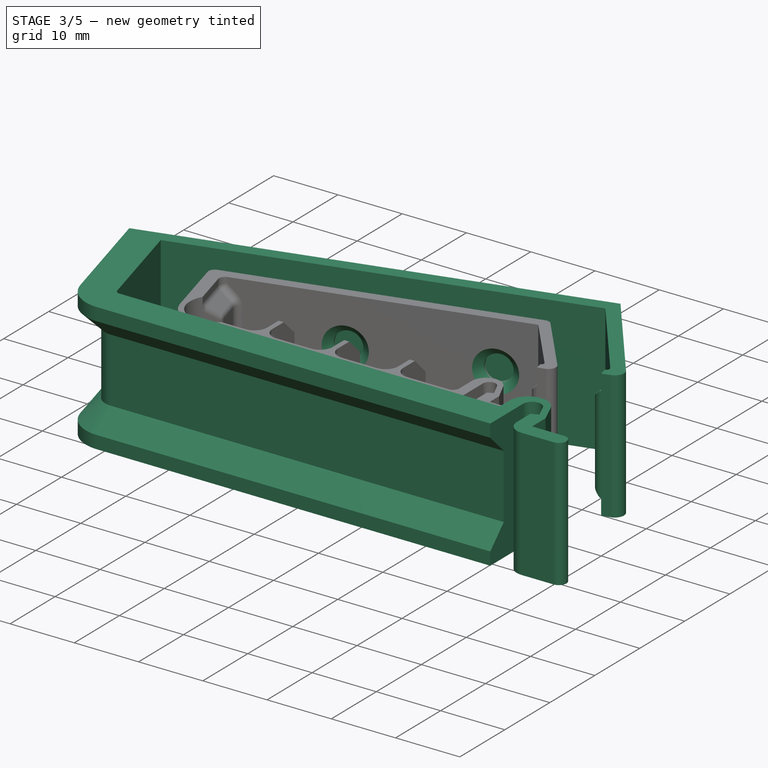
[diagram: stage 3 of 5 — iso view after this stage's code; geometry added in this stage tinted green]
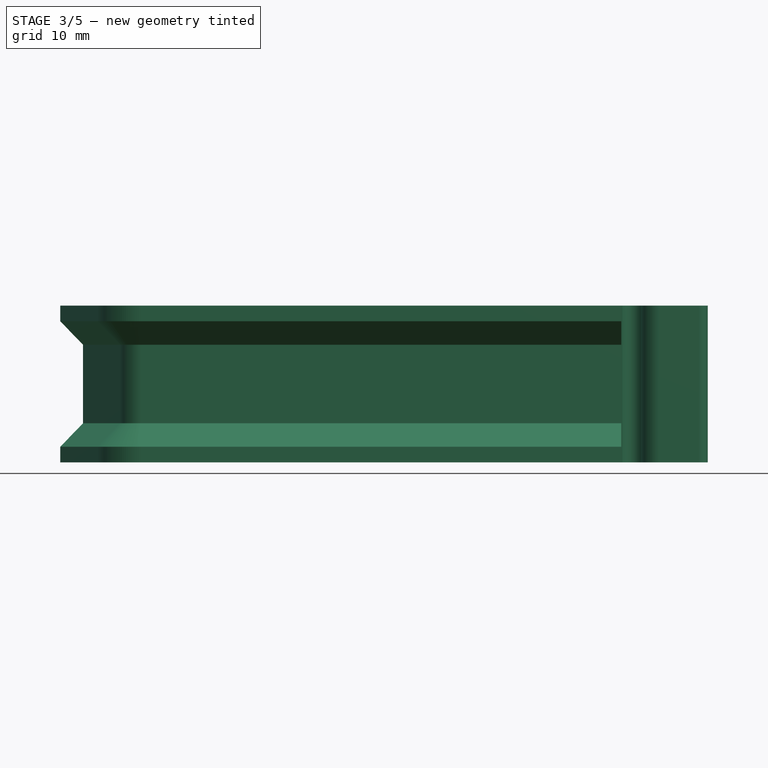
[diagram: stage 3 of 5 — front view after this stage's code; geometry added in this stage tinted green]
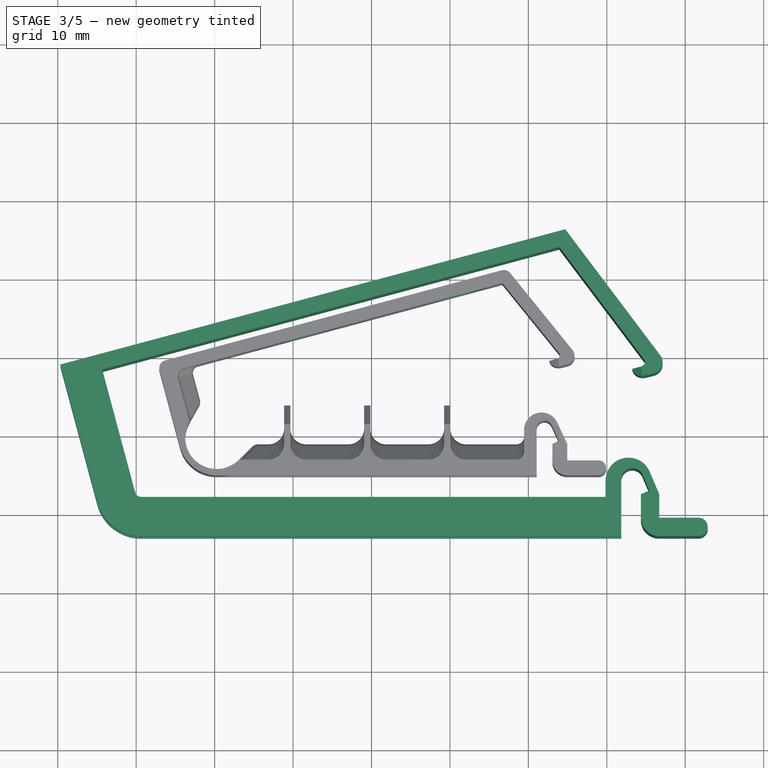
[diagram: stage 3 of 5 — top view after this stage's code; geometry added in this stage tinted green]
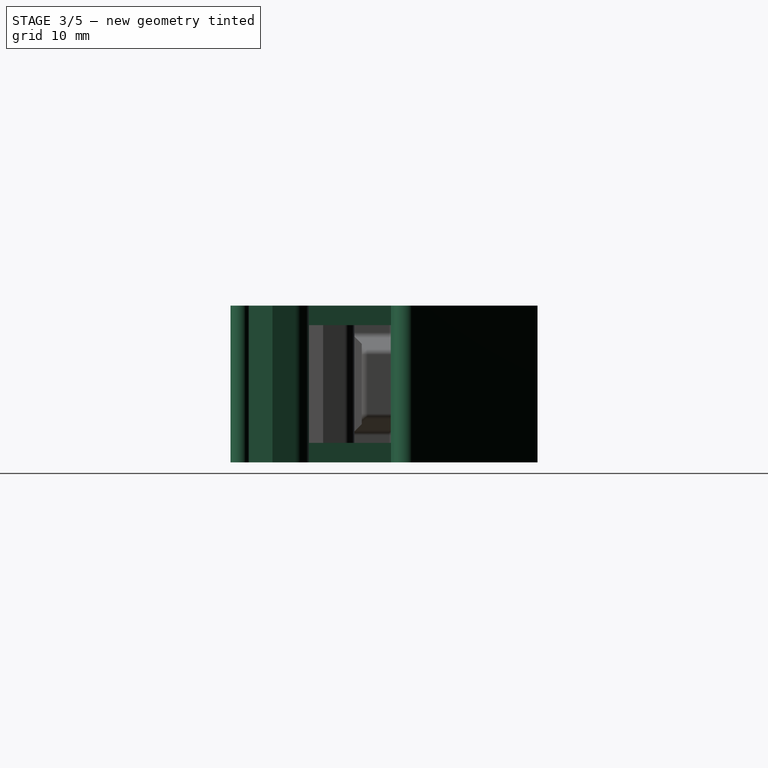
[diagram: stage 3 of 5 — right view after this stage's code; geometry added in this stage tinted green]
FEATURE [PartDesign::Pocket] Pocket006
  BaseFeature = -> Pocket005
  Direction = (-0.258819,0.965926,0)
  Length = 5
  Length2 = 5
  Profile = -> Sketch019
  ReferenceAxis = -> Sketch019 [N_Axis]
  Suppressed = false
  Type = 1
FEATURE [PartDesign::Body] Body003  label="40x5"
  AllowCompound = false
  BaseFeature = -> Body
  Group = -> [Clone002,ShapeBinder006,ShapeBinder007,Sketch020,Pad005,LinearPattern002,Fillet002]
  Origin = -> Origin003
  Tip = -> Fillet002
FEATURE [Sketcher::SketchObject] Sketch021  label="B60_Template"
  ArcFitTolerance = 0
  AttachmentSupport = -> [XY_Plane]
  FullyConstrained = true
  MakeInternals = false
  MapMode = 5
  expr: .Constraints.Ah = 90 ° - .Constraints.A1
  expr: .Constraints.Al = .Constraints.A1 + 90 °
  expr: .Constraints.Rh = .Constraints.Tb + 0.8 mm
  expr: .Constraints.Tl = .Constraints.Tb / 2.5
  expr: Constraints[100] = .Constraints.Tb / 10
  expr: Constraints[121] = .Constraints.Al - 1 °
  expr: Constraints[128] = .Constraints.Tb / 4
  expr: Constraints[131] = .Constraints.Tb / 5
  expr: Constraints[137] = .Constraints.Ah
  expr: Constraints[13] = .Constraints.Tb / 5
  expr: Constraints[2] = .Constraints.Tb / 2.5
  expr: Constraints[44] = .Constraints.Tb
  expr: Constraints[60] = .Constraints.Tb / 10
  expr: Constraints[76] = .Constraints.Tb / 2
  expr: Constraints[92] = .Constraints.Lb / 2.5
  expr: Constraints[94] = .Constraints.Tb
  sketch-geometry (70):
    g0: LineSegment StartX=-29.3614 StartY=-18 StartZ=0 EndX=29.8386 EndY=-18 EndZ=0
    g1: LineSegment StartX=31.8386 StartY=-23 StartZ=0 EndX=-29.3614 EndY=-23 EndZ=0
    g2: ArcOfCircle [constr] CenterX=-29.3614 CenterY=-17.2 CenterZ=0 NormalX=0 NormalY=0 NormalZ=1 AngleXU=0 Radius=5.8 StartAngle=3.14159 EndAngle=4.71239
    g3: LineSegment [constr] StartX=-35.1614 StartY=-17.2 StartZ=0 EndX=-30.1614 EndY=-17.2 EndZ=0
    g4: LineSegment [constr] StartX=-29.3614 StartY=-18 StartZ=0 EndX=-29.3614 EndY=-23 EndZ=0
    g5: LineSegment StartX=29.8386 StartY=-18 StartZ=0 EndX=29.8386 EndY=-15.9324 EndZ=0
    g6: ArcOfCircle CenterX=32.771 CenterY=-15.9324 CenterZ=0 NormalX=0 NormalY=0 NormalZ=1 AngleXU=0 Radius=2.93236 StartAngle=0.401426 EndAngle=3.14159
    g7: ArcOfCircle CenterX=33.2503 CenterY=-15.7289 CenterZ=0 NormalX=0 NormalY=0 NormalZ=1 AngleXU=0 Radius=1.41167 StartAngle=0.401426 EndAngle=3.14159
    g8: LineSegment StartX=34.5497 StartY=-15.1773 StartZ=0 EndX=35.4094 EndY=-17.2024 EndZ=0
    g9: LineSegment StartX=35.4702 StartY=-14.7866 StartZ=0 EndX=36.6886 EndY=-17.6569 EndZ=0
    g10: LineSegment StartX=31.8386 StartY=-23 StartZ=0 EndX=31.8386 EndY=-15.7289 EndZ=0
    g11: LineSegment StartX=36.6886 StartY=-17.6569 StartZ=0 EndX=36.6886 EndY=-20.65 EndZ=0
    g12: LineSegment [constr] StartX=29.8386 StartY=-18 StartZ=0 EndX=31.8386 EndY=-18 EndZ=0
    g13: LineSegment StartX=34.3386 StartY=-17.6569 StartZ=0 EndX=34.3386 EndY=-20.65 EndZ=0
    g14: LineSegment StartX=34.3386 StartY=-17.6569 StartZ=0 EndX=35.4094 EndY=-17.2024 EndZ=0
    g15: LineSegment [constr] StartX=34.5497 StartY=-15.1773 StartZ=0 EndX=35.4702 EndY=-14.7866 EndZ=0
    g16: LineSegment [constr] StartX=34.3386 StartY=-17.6569 StartZ=0 EndX=36.6886 EndY=-17.6569 EndZ=0
    g17: ArcOfCircle CenterX=36.6886 CenterY=-20.65 CenterZ=0 NormalX=0 NormalY=0 NormalZ=1 AngleXU=0 Radius=2.35 StartAngle=3.14159 EndAngle=4.71239
    g18: LineSegment [constr] StartX=36.6886 StartY=-20.65 StartZ=0 EndX=36.6886 EndY=-23 EndZ=0
    g19: LineSegment [constr] StartX=29.8386 StartY=-13 StartZ=0 EndX=32.771 EndY=-13 EndZ=0
    g20: LineSegment [constr] StartX=29.8386 StartY=-18 StartZ=0 EndX=29.8386 EndY=-23 EndZ=0
    g21: LineSegment StartX=36.6886 StartY=-20.65 StartZ=0 EndX=41.6886 EndY=-20.65 EndZ=0
    g22: LineSegment StartX=36.6886 StartY=-23 StartZ=0 EndX=41.6886 EndY=-23 EndZ=0
    g23: LineSegment [constr] StartX=41.6886 StartY=-20.65 StartZ=0 EndX=41.6886 EndY=-23 EndZ=0
    g24: ArcOfCircle CenterX=41.6886 CenterY=-21.825 CenterZ=0 NormalX=0 NormalY=0 NormalZ=1 AngleXU=0 Radius=1.175 StartAngle=4.71239 EndAngle=7.85398
    g25: LineSegment [constr] StartX=-30.1614 StartY=-17.2 StartZ=0 EndX=-30.1614 EndY=-1 EndZ=0
    g26: LineSegment [constr] StartX=-35.1614 StartY=-17.2 StartZ=0 EndX=-35.1614 EndY=1 EndZ=0
    g27: LineSegment [constr] StartX=-30.1614 StartY=-1 StartZ=0 EndX=30.1614 EndY=-1 EndZ=0
    g28: LineSegment [constr] StartX=-35.1614 StartY=1 StartZ=0 EndX=31.4851 EndY=1 EndZ=0
    g29: LineSegment [constr] StartX=-30.1614 StartY=-1 StartZ=0 EndX=-30.1614 EndY=1 EndZ=0
    g30: LineSegment [constr] StartX=30.1614 StartY=-1 StartZ=0 EndX=37.1913 EndY=-17.5616 EndZ=0
    g31: LineSegment [constr] StartX=31.4851 StartY=1 StartZ=0 EndX=39.3544 EndY=-17.5387 EndZ=0
    g32: LineSegment [constr] StartX=30.1614 StartY=-1 StartZ=0 EndX=32.0024 EndY=-0.218538 EndZ=0
    g33: LineSegment [constr] StartX=36.7311 StartY=-19.5494 StartZ=0 EndX=38.0235 EndY=-19.5494 EndZ=0
    g34: ArcOfCircle [constr] CenterX=38.0235 CenterY=-18.1036 CenterZ=0 NormalX=0 NormalY=0 NormalZ=1 AngleXU=0 Radius=1.44576 StartAngle=4.71239 EndAngle=6.68461
    g35: ArcOfCircle [constr] CenterX=36.7311 CenterY=-17.7569 CenterZ=0 NormalX=0 NormalY=0 NormalZ=1 AngleXU=0 Radius=0.5 StartAngle=4.71239 EndAngle=6.68461
    g36: LineSegment [constr] StartX=36.7311 StartY=-18.2569 StartZ=0 EndX=36.7311 EndY=-19.5494 EndZ=0
    g37: ArcOfCircle [constr] CenterX=36.7311 CenterY=-18.2569 CenterZ=0 NormalX=0 NormalY=0 NormalZ=1 AngleXU=0 Radius=1.29245 StartAngle=3.14159 EndAngle=4.71239
    g38: GeomPoint [constr] X=29.8386 Y=-17.2 Z=0
    g39: LineSegment [constr] StartX=-30.1614 StartY=-1 StartZ=0 EndX=-35.1614 EndY=-1 EndZ=0
    g40: GeomPoint [constr] X=-35.1614 Y=-23 Z=0
    g41: Circle CenterX=-29.3614 CenterY=-17.2 CenterZ=0 NormalX=0 NormalY=0 NormalZ=1 AngleXU=0 Radius=5
    g42: LineSegment StartX=36.6886 StartY=-18.1569 StartZ=0 EndX=35.3386 EndY=-18.1569 EndZ=0
    g43: LineSegment [constr] StartX=35.4386 StartY=-18.2569 StartZ=0 EndX=35.4386 EndY=-18.1569 EndZ=0
    g44: LineSegment [constr] StartX=36.6886 StartY=-17.6569 StartZ=0 EndX=37.1489 EndY=-17.4616 EndZ=0
    g45: LineSegment StartX=36.6886 StartY=-20.65 StartZ=0 EndX=35.3386 EndY=-20.65 EndZ=0
    g46: LineSegment [constr] StartX=35.3386 StartY=-20.65 StartZ=0 EndX=34.3386 EndY=-20.65 EndZ=0
    g47: LineSegment StartX=35.3386 StartY=-18.1569 StartZ=0 EndX=35.3386 EndY=-20.65 EndZ=0
    g48: LineSegment [constr] StartX=35.4386 StartY=-18.2569 StartZ=0 EndX=35.3386 EndY=-18.2569 EndZ=0
    g49: LineSegment StartX=-39.6742 StartY=-1.1213 StartZ=0 EndX=24.7013 EndY=16.1281 EndZ=0
    g50: LineSegment StartX=-34.327 StartY=-1.75906 StartZ=0 EndX=23.9403 EndY=13.8536 EndZ=0
    g51: LineSegment [constr] StartX=36.7311 StartY=-18.2569 StartZ=0 EndX=35.4386 EndY=-18.2569 EndZ=0
    g52: LineSegment StartX=23.9403 StartY=13.8536 StartZ=0 EndX=34.7681 EndY=-0.515299 EndZ=0
    g53: LineSegment StartX=24.7013 StartY=16.1281 StartZ=0 EndX=36.8217 EndY=0.0437811 EndZ=0
    g54: GeomPoint [constr] X=36.6886 Y=-18.2569 Z=0
    g55: ArcOfCircle CenterX=35.6671 CenterY=-0.826298 CenterZ=0 NormalX=0 NormalY=0 NormalZ=1 AngleXU=0 Radius=1.44576 StartAngle=4.95674 EndAngle=6.92896
    g56: LineSegment StartX=36.0169 StartY=-2.22911 StartZ=0 EndX=34.7628 EndY=-2.54178 EndZ=0
    g57: ArcOfCircle CenterX=34.3687 CenterY=-0.816206 CenterZ=0 NormalX=0 NormalY=0 NormalZ=1 AngleXU=0 Radius=0.5 StartAngle=4.95674 EndAngle=6.92896
    g58: LineSegment StartX=34.4897 StartY=-1.30135 StartZ=0 EndX=33.2573 EndY=-1.60863 EndZ=0
    g59: ArcOfCircle CenterX=34.4897 CenterY=-1.30135 CenterZ=0 NormalX=0 NormalY=0 NormalZ=1 AngleXU=0 Radius=1.27013 StartAngle=3.38594 EndAngle=4.92909
    g60: ArcOfCircle [constr] CenterX=-29.3614 CenterY=-17.2 CenterZ=0 NormalX=0 NormalY=0 NormalZ=1 AngleXU=0 Radius=0.8 StartAngle=3.14159 EndAngle=4.71239
    g61: ArcOfCircle CenterX=-29.3614 CenterY=-17.2 CenterZ=0 NormalX=0 NormalY=0 NormalZ=1 AngleXU=0 Radius=0.8 StartAngle=3.40339 EndAngle=4.71239
    g62: ArcOfCircle CenterX=-29.3614 CenterY=-17.2 CenterZ=0 NormalX=0 NormalY=0 NormalZ=1 AngleXU=0 Radius=5.8 StartAngle=3.40339 EndAngle=4.71239
    g63: LineSegment [constr] StartX=-29.3614 StartY=-17.2 StartZ=0 EndX=-34.9637 EndY=-18.7012 EndZ=0
    g64: LineSegment StartX=-34.9637 StartY=-18.7012 StartZ=0 EndX=-39.6742 EndY=-1.1213 EndZ=0
    g65: LineSegment StartX=-30.1341 StartY=-17.4071 StartZ=0 EndX=-34.327 EndY=-1.75906 EndZ=0
    g66: GeomPoint [constr] X=-30.1614 Y=-23 Z=0
    g67: LineSegment [constr] StartX=29.8386 StartY=-1 StartZ=0 EndX=29.8386 EndY=-15.9324 EndZ=0
    g68: ArcOfCircle [constr] CenterX=-29.3614 CenterY=-17.2 CenterZ=0 NormalX=0 NormalY=0 NormalZ=1 AngleXU=0 Radius=61.3765 StartAngle=0.267109 EndAngle=0.528909
    g69: LineSegment StartX=23.6286 StartY=13.7701 StartZ=0 EndX=23.1109 EndY=15.7019 EndZ=0
  constraints (187):
    c: Coincident(g3,g2)
    c: Coincident(g5,g0)
    c: DistanceX(g5,g10) = 2
    c: Tangent(g10,g7) = 1.5708
    c: Tangent(g5,g6) = 1.5708
    c: Parallel(g8,g9)
    c: Tangent(g7,g8) = 1.5708
    c: Tangent(g6,g9) = 1.5708
    c: Angle(g10,g8) = 0.401426  'A1'
    c: Coincident(g12,g0)
    c: Horizontal(g12)
    c: Perpendicular(g8,g14)
    c: Coincident(g15,g7)
    c: Distance(g15) = 1
    c: Coincident(g16,g13)
    c: Coincident(g17,g13)
    c: Coincident(g46,g13)
    c: Coincident(g18,g17)
    c: PointOnObject(g17,g1)
    c: PointOnObject(g21,g18)
    c: PointOnObject(g12,g10)
    c: Horizontal(g19)
    c: Tangent(g19,g6) = 1.5708
    c: PointOnObject(g19,g5)
    c: Coincident(g20,g0)
    c: PointOnObject(g20,g1)
    c: Symmetric(g20,g19,g0)
    c: Distance(g8,g7) = 2.2
    c: Coincident(g22,g17)
    c: Coincident(g23,g21)
    c: Coincident(g23,g22)
    c: PointOnObject(g24,g23)
    c: Coincident(g24,g21)
    c: Coincident(g24,g22)
    c: Coincident(g6,g15)
    c: PointOnObject(g7,g15)
    c: Coincident(g27,g25)
    c: Coincident(g28,g26)
    c: Tangent(g26,g2) = 1.5708
    c: Perpendicular(g26,g28)
    c: Coincident(g29,g25)
    c: PointOnObject(g29,g28)
    c: Distance(g29) = 2  'Tl'
    c: PointOnObject(g29,g25)
    c: DistanceX(g17,g22) = 5
    c: Perpendicular(g25,g27)
    c: Coincident(g30,g27)
    c: Angle(g27,g30) = 1.97222  'Al'
    c: Coincident(g31,g28)
    c: Parallel(g31,g30)
    c: Coincident(g32,g27)
    c: PointOnObject(g32,g31)
    c: Perpendicular(g31,g32)
    c: Equal(g32,g29)
    c: Tangent(g31,g34) = 1.5708
    c: Tangent(g33,g34) = -1.5708
    c: Tangent(g30,g35) = 1.5708
    c: Tangent(g51,g35) = 1.5708
    c: Angle(g31,g33) = 1.16937  'Ah'
    c: Coincident(g36,g51)
    c: Radius(g35) = 0.5
    c: Coincident(g37,g33)
    c: Coincident(g37,g51)
    c: Coincident(g33,g36)
    c: Perpendicular(g5,g0)
    c: Perpendicular(g1,g10)
    c: Parallel(g13,g10)
    c: Parallel(g11,g13)
    c: Perpendicular(g11,g21)
    c: Perpendicular(g13,g22)
    c: Perpendicular(g21,g18)
    c: Perpendicular(g11,g16)
    c: Perpendicular(g21,g23)
    c: Parallel(g0,g1)
    c: Horizontal(g1)
    c: Coincident(g1,g10)
    c: DistanceX(g1,g13) = 2.5
    c: Coincident(g13,g14)
    c: Coincident(g8,g14)
    c: Coincident(g9,g11)
    c: Coincident(g9,g16)
    c: Coincident(g45,g18)
    c: Coincident(g45,g17)
    c: Coincident(g11,g21)
    c: PointOnObject(g38,g20)
    c: PointOnObject(g38,g3)
    c: Coincident(g39,g25)
    c: PointOnObject(g39,g26)
    c: Perpendicular(g26,g39)
    c: Parallel(g25,g26)
    c: PointOnObject(g40,g26)
    c: PointOnObject(g40,g1)
    c: Distance(g40,g26) = 24
    c: Symmetric(g27,g29,g-1)  '__*@#@*__'
    c: Radius(g41) = 5
    c: PointOnObject(g42,g11)
    c: PointOnObject(g43,g42)
    c: Coincident(g44,g9)
    c: PointOnObject(g44,g30)
    c: Perpendicular(g30,g44)
    c: Distance(g44) = 0.5
    c: Distance(g43) = 0.1
    c: Coincident(g45,g46)
    c: PointOnObject(g11,g45)
    c: Perpendicular(g11,g45)
    c: Perpendicular(g11,g46)
    c: Coincident(g47,g42)
    c: Coincident(g45,g47)
    c: Parallel(g47,g11)
    c: Perpendicular(g47,g48)
    c: Parallel(g49,g50)
    c: Equal(g28,g49)
    c: Equal(g27,g50)
    c: Perpendicular(g51,g36)
    c: Parallel(g51,g42)
    c: Perpendicular(g51,g43)
    c: Parallel(g36,g11)
    c: Equal(g48,g43)
    c: PointOnObject(g48,g47)
    c: Coincident(g52,g50)
    c: Coincident(g53,g49)
    c: Angle(g50,g52) = 1.95477
    c: Parallel(g52,g53)
    c: Equal(g30,g52)
    c: Equal(g31,g53)
    c: Coincident(g51,g37)
    c: PointOnObject(g54,g11)
    c: PointOnObject(g54,g51)
    c: Distance(g54,g37) = 1.25
    c: Coincident(g43,g37)
    c: Coincident(g37,g48)
    c: Distance(g45,g13) = 1
    c: Distance(g54,g9) = 0.6
    c: Equal(g33,g51)
    c: Tangent(g53,g55) = 1.5708
    c: Equal(g55,g34)
    c: Tangent(g55,g56) = 1.5708
    c: Angle(g53,g56) = 1.16937
    c: Equal(g33,g56)
    c: Tangent(g52,g57) = 1.5708
    c: Equal(g57,g35)
    c: Tangent(g57,g58) = 1.5708
    c: Parallel(g58,g56)
    c: Coincident(g59,g57)
    c: Coincident(g59,g56)
    c: Coincident(g59,g58)
    c: Tangent(g1,g2) = 1.5708
    c: Coincident(g3,g25)
    c: Coincident(g4,g0)
    c: Coincident(g4,g1)
    c: Perpendicular(g0,g25)
    c: Coincident(g60,g2)
    c: Coincident(g60,g3)
    c: Tangent(g60,g0) = -1.5708
    c: DistanceY(g1,g12) = 5  'Tb'
    c: Radius(g2) = 5.8  'Rh'
    c: Coincident(g41,g2)
    c: Coincident(g61,g41)
    c: Coincident(g61,g0)
    c: Coincident(g62,g41)
    c: Coincident(g62,g1)
    c: Coincident(g63,g41)
    c: Coincident(g63,g62)
    c: PointOnObject(g61,g63)
    c: Angle(g63,g4) = 1.309
    c: Coincident(g64,g49)
    c: Coincident(g65,g61)
    c: Coincident(g65,g50)
    c: Tangent(g64,g62) = 1.5708
    c: Parallel(g64,g65)
    c: Equal(g64,g26)
    c: Equal(g65,g25)
    c: Perpendicular(g65,g50)
    c: PointOnObject(g66,g25)
    c: PointOnObject(g66,g1)
    c: DistanceX(g66,g20) = 60  'Lb'
    c: Perpendicular(g4,g3)
    c: Radius(g61) = 0.8  'Rhi'
    c: PointOnObject(g67,g27)
    c: Coincident(g67,g5)
    c: Vertical(g67)
    c: Coincident(g68,g2)
    c: Coincident(g68,g67)
    c: PointOnObject(g68,g50)
    c: Coincident(g69,g68)
    c: PointOnObject(g69,g49)
    c: Perpendicular(g50,g69)
FEATURE [Sketcher::SketchObject] Sketch022  label="B60_Base"
  ArcFitTolerance = 0
  AttachmentSupport = -> [XY_Plane]
  ExternalGeometry = -> [Sketch021]
  FullyConstrained = true
  MakeInternals = false
  MapMode = 5
  sketch-geometry (27):
    g0: ArcOfCircle CenterX=-29.3614 CenterY=-17.2 CenterZ=0 NormalX=0 NormalY=0 NormalZ=1 AngleXU=0 Radius=0.8 StartAngle=3.40339 EndAngle=4.71239
    g1: ArcOfCircle CenterX=-29.3614 CenterY=-17.2 CenterZ=0 NormalX=0 NormalY=0 NormalZ=1 AngleXU=0 Radius=5.8 StartAngle=3.40339 EndAngle=4.71239
    g2: ArcOfCircle CenterX=41.6886 CenterY=-21.825 CenterZ=0 NormalX=0 NormalY=0 NormalZ=1 AngleXU=0 Radius=1.175 StartAngle=4.71238 EndAngle=7.85399
    g3: ArcOfCircle CenterX=36.6886 CenterY=-20.65 CenterZ=0 NormalX=0 NormalY=0 NormalZ=1 AngleXU=0 Radius=2.35 StartAngle=3.14159 EndAngle=4.71239
    g4: LineSegment StartX=35.4702 StartY=-14.7866 StartZ=0 EndX=36.6886 EndY=-17.6569 EndZ=0
    g5: LineSegment StartX=36.6886 StartY=-17.6569 StartZ=0 EndX=36.6886 EndY=-20.65 EndZ=0
    g6: LineSegment StartX=36.6886 StartY=-20.65 StartZ=0 EndX=41.6886 EndY=-20.65 EndZ=0
    g7: LineSegment StartX=41.6886 StartY=-23 StartZ=0 EndX=36.6886 EndY=-23 EndZ=0
    g8: LineSegment StartX=34.3386 StartY=-20.65 StartZ=0 EndX=34.3386 EndY=-17.6569 EndZ=0
    g9: LineSegment StartX=34.3386 StartY=-17.6569 StartZ=0 EndX=35.4094 EndY=-17.2024 EndZ=0
    g10: LineSegment StartX=35.4094 StartY=-17.2024 StartZ=0 EndX=34.5497 EndY=-15.1773 EndZ=0
    g11: LineSegment StartX=31.8386 StartY=-15.7289 StartZ=0 EndX=31.8386 EndY=-23 EndZ=0
    g12: LineSegment StartX=31.8386 StartY=-23 StartZ=0 EndX=-29.3614 EndY=-23 EndZ=0
    g13: LineSegment StartX=29.8386 StartY=-15.9324 StartZ=0 EndX=29.8386 EndY=-18 EndZ=0
    g14: LineSegment StartX=29.8386 StartY=-18 StartZ=0 EndX=-29.3614 EndY=-18 EndZ=0
    g15: ArcOfCircle CenterX=35.6671 CenterY=-0.826298 CenterZ=0 NormalX=0 NormalY=0 NormalZ=1 AngleXU=0 Radius=1.44576 StartAngle=4.95674 EndAngle=6.92896
    g16: ArcOfCircle CenterX=34.3687 CenterY=-0.816206 CenterZ=0 NormalX=0 NormalY=0 NormalZ=1 AngleXU=0 Radius=0.5 StartAngle=4.95674 EndAngle=6.92896
    g17: LineSegment StartX=34.7628 StartY=-2.54178 StartZ=0 EndX=36.0169 EndY=-2.22911 EndZ=0
    g18: LineSegment StartX=-34.9637 StartY=-18.7012 StartZ=0 EndX=-39.6742 EndY=-1.1213 EndZ=0
    g19: LineSegment StartX=-39.6742 StartY=-1.1213 StartZ=0 EndX=24.7013 EndY=16.1281 EndZ=0
    g20: LineSegment StartX=24.7013 StartY=16.1281 StartZ=0 EndX=36.8217 EndY=0.0437811 EndZ=0
    g21: LineSegment StartX=34.7681 StartY=-0.515299 StartZ=0 EndX=23.9403 EndY=13.8536 EndZ=0
    g22: LineSegment StartX=23.9403 StartY=13.8536 StartZ=0 EndX=-34.327 EndY=-1.75906 EndZ=0
    g23: LineSegment StartX=-34.327 StartY=-1.75906 StartZ=0 EndX=-30.1341 EndY=-17.4071 EndZ=0
    g24: LineSegment StartX=34.4897 StartY=-1.30135 StartZ=0 EndX=34.7628 EndY=-2.54178 EndZ=0
    g25: ArcOfCircle CenterX=33.2503 CenterY=-15.7289 CenterZ=0 NormalX=0 NormalY=0 NormalZ=1 AngleXU=0 Radius=1.41167 StartAngle=0.401426 EndAngle=3.14159
    g26: ArcOfCircle CenterX=32.771 CenterY=-15.9324 CenterZ=0 NormalX=0 NormalY=0 NormalZ=1 AngleXU=0 Radius=2.93236 StartAngle=0.401426 EndAngle=3.14159
  constraints (62):
    c: Coincident(g0,g-9)
    c: Coincident(g0,g-10)
    c: Coincident(g1,g-8)
    c: Coincident(g1,g-11)
    c: Equal(g-9,g0)
    c: Equal(g-8,g1)
    c: Coincident(g2,g-3)
    c: Coincident(g2,g-3)
    c: Coincident(g3,g-4)
    c: Coincident(g3,g-4)
    c: Equal(g-3,g2)
    c: Equal(g-4,g3)
    c: Coincident(g4,g-15)
    c: Coincident(g4,g5)
    c: Coincident(g5,g3)
    c: Coincident(g5,g6)
    c: Coincident(g6,g2)
    c: Coincident(g2,g7)
    c: Coincident(g7,g3)
    c: Coincident(g3,g8)
    c: Coincident(g8,g-16)
    c: Coincident(g8,g9)
    c: Coincident(g9,g-16)
    c: Coincident(g9,g10)
    c: Coincident(g11,g-11)
    c: Coincident(g11,g12)
    c: Coincident(g12,g1)
    c: Coincident(g13,g-10)
    c: Coincident(g13,g14)
    c: Coincident(g14,g0)
    c: Coincident(g15,g-7)
    c: Coincident(g15,g-7)
    c: Coincident(g16,g-14)
    c: Coincident(g16,g-14)
    c: Equal(g-14,g16)
    c: Equal(g-7,g15)
    c: Coincident(g17,g15)
    c: Coincident(g1,g18)
    c: Coincident(g18,g-12)
    c: Coincident(g18,g19)
    c: Coincident(g19,g-12)
    c: Coincident(g19,g20)
    c: Coincident(g20,g15)
    c: Coincident(g16,g21)
    c: Coincident(g21,g-13)
    c: Coincident(g21,g22)
    c: Coincident(g22,g-13)
    c: Coincident(g22,g23)
    c: Coincident(g23,g0)
    c: Coincident(g17,g-17)
    c: Coincident(g24,g16)
    c: Coincident(g24,g17)
    c: Coincident(g25,g11)
    c: Coincident(g25,g10)
    c: Coincident(g26,g13)
    c: Coincident(g26,g4)
    c: Coincident(g4,g-6)
    c: Coincident(g13,g-6)
    c: Coincident(g10,g-5)
    c: Coincident(g11,g-5)
    c: Equal(g25,g-5)
    c: Equal(g26,g-6)
FEATURE [PartDesign::Pad] Pad006  label="_B60_Base"
  Direction = (0,0,1)
  Length = 20
  Length2 = 10
  Midplane = true
  Profile = -> Sketch022
  ReferenceAxis = -> Sketch022 [N_Axis]
  Suppressed = false
  Type = 0
  expr: Length = <<B60_Template>>.Constraints.Tb * 4
FEATURE [Sketcher::SketchObject] Sketch024
  ArcFitTolerance = 0
  AttachmentSupport = -> [XY_Plane]
  ExternalGeometry = -> [Sketch021]
  FullyConstrained = true
  MakeInternals = false
  MapMode = 5
  sketch-geometry (4):
    g0: LineSegment StartX=31.8386 StartY=-20.5 StartZ=0 EndX=-29.3614 EndY=-20.5 EndZ=0
    g1: ArcOfCircle CenterX=-29.3614 CenterY=-17.2 CenterZ=0 NormalX=0 NormalY=0 NormalZ=1 AngleXU=0 Radius=3.3 StartAngle=3.40339 EndAngle=4.71239
    g2: LineSegment [constr] StartX=-34.9637 StartY=-18.7012 StartZ=0 EndX=-30.1341 EndY=-17.4071 EndZ=0
    g3: LineSegment StartX=-32.5489 StartY=-18.0541 StartZ=0 EndX=-37.2594 EndY=-0.474253 EndZ=0
  constraints (10):
    c: Horizontal(g0)
    c: PointOnObject(g0,g-5)
    c: Symmetric(g-6,g-3,g0)
    c: Coincident(g1,g-6)
    c: Coincident(g1,g0)
    c: Coincident(g2,g-3)
    c: Coincident(g2,g-6)
    c: PointOnObject(g1,g2)
    c: PointOnObject(g3,g-4)
    c: Tangent(g3,g1) = 1.5708
FEATURE [PartDesign::Plane] DatumPlane008
  AttachmentSupport = -> [Sketch024]
  Length = 60
  MapMode = 7
  Placement = pos=(31.8386,-20.5,0) rot=(0.57735,0.57735,0.57735;2.0944rad)
  ResizeMode = 0
  Width = 60
FEATURE [Sketcher::SketchObject] Sketch023
  ArcFitTolerance = 0
  AttachmentSupport = -> [DatumPlane008]
  ExternalGeometry = -> [Sketch021]
  FullyConstrained = true
  MakeInternals = false
  MapMode = 5
  Placement = pos=(31.8386,-20.5,0) rot=(0.57735,0.57735,0.57735;2.0944rad)
  expr: Constraints[1] = <<_B60_Base>>.Length
  expr: Constraints[20] = <<B60_Template>>.Constraints.Tb / 2.5
  sketch-geometry (10):
    g0: LineSegment [constr] StartX=2.5 StartY=10 StartZ=0 EndX=2.5 EndY=-10 EndZ=0
    g1: LineSegment StartX=-2.5 StartY=-8 StartZ=0 EndX=0.5 EndY=-5 EndZ=0
    g2: LineSegment StartX=0.5 StartY=-5 StartZ=0 EndX=0.5 EndY=5 EndZ=0
    g3: LineSegment StartX=0.5 StartY=5 StartZ=0 EndX=-2.5 EndY=8 EndZ=0
    g4: LineSegment StartX=-2.5 StartY=8 StartZ=0 EndX=-2.5 EndY=-8 EndZ=0
    g5: LineSegment [constr] StartX=-2.5 StartY=10 StartZ=0 EndX=-2.5 EndY=8 EndZ=0
    g6: LineSegment [constr] StartX=-2.5 StartY=-10 StartZ=0 EndX=-2.5 EndY=-8 EndZ=0
    g7: LineSegment [constr] StartX=-2.5 StartY=-10 StartZ=0 EndX=2.5 EndY=-10 EndZ=0
    g8: LineSegment [constr] StartX=0.5 StartY=5 StartZ=0 EndX=2.5 EndY=5 EndZ=0
    g9: LineSegment [constr] StartX=-2.5 StartY=10 StartZ=0 EndX=2.5 EndY=10 EndZ=0
  constraints (28):
    c: Vertical(g0)
    c: DistanceY(g0,g0) = 20
    c: Coincident(g2,g1)
    c: Vertical(g2)
    c: Coincident(g3,g2)
    c: Coincident(g4,g3)
    c: Coincident(g4,g1)
    c: Coincident(g5,g9)
    c: Coincident(g5,g3)
    c: Coincident(g6,g1)
    c: Equal(g6,g5)
    c: Angle(g1,g4) = 0.785398
    c: Equal(g1,g3)
    c: Vertical(g4)
    c: Vertical(g6)
    c: Coincident(g7,g6)
    c: Coincident(g7,g0)
    c: Coincident(g8,g2)
    c: PointOnObject(g8,g0)
    c: Horizontal(g8)
    c: DistanceX(g8,g8) = 2
    c: Horizontal(g9)
    c: Coincident(g9,g0)
    c: Equal(g8,g5)
    c: Symmetric(g5,g6,g-1)
    c: Horizontal(g7)
    c: PointOnObject(g-4,g0)
    c: PointOnObject(g-3,g4)
FEATURE [Sketcher::SketchObject] Sketch025  label="B60_InnerPath"
  ArcFitTolerance = 0
  AttachmentSupport = -> [XY_Plane]
  ExternalGeometry = -> [Sketch021]
  FullyConstrained = true
  MakeInternals = false
  MapMode = 5
  sketch-geometry (5):
    g0: LineSegment [constr] StartX=29.8386 StartY=-18 StartZ=0 EndX=29.8386 EndY=-23 EndZ=0
    g1: LineSegment StartX=29.8386 StartY=-20.5 StartZ=0 EndX=-29.3614 EndY=-20.5 EndZ=0
    g2: ArcOfCircle CenterX=-29.3614 CenterY=-17.2 CenterZ=0 NormalX=0 NormalY=0 NormalZ=1 AngleXU=0 Radius=3.3 StartAngle=3.40339 EndAngle=4.71239
    g3: LineSegment StartX=-32.5489 StartY=-18.0541 StartZ=0 EndX=-36.7418 EndY=-2.4061 EndZ=0
    g4: LineSegment [constr] StartX=-34.9637 StartY=-18.7012 StartZ=0 EndX=-30.1341 EndY=-17.4071 EndZ=0
  constraints (13):
    c: Coincident(g2,g1)
    c: Tangent(g3,g2) = 1.5708
    c: Coincident(g0,g-3)
    c: Parallel(g0,g-5)
    c: PointOnObject(g0,g-4)
    c: Parallel(g1,g-4)
    c: Symmetric(g-7,g-6,g1)
    c: Coincident(g2,g-7)
    c: Coincident(g4,g-6)
    c: Coincident(g4,g-7)
    c: PointOnObject(g1,g0)
    c: PointOnObject(g2,g4)
    c: PointOnObject(g3,g-8)
FEATURE [PartDesign::Plane] DatumPlane009  label="B60_InnerSubPlane"
  AttachmentSupport = -> [Sketch025]
  Length = 60
  MapMode = 7
  Placement = pos=(29.8386,-20.5,0) rot=(0.57735,0.57735,0.57735;2.0944rad)
  ResizeMode = 0
  Width = 60
FEATURE [Sketcher::SketchObject] Sketch026  label="B60_WingSide1Cut"
  ArcFitTolerance = 0
  AttachmentSupport = -> [DatumPlane009]
  ExternalGeometry = -> [Sketch023]
  FullyConstrained = true
  MakeInternals = false
  MapMode = 5
  Placement = pos=(29.8386,-20.5,0) rot=(0.57735,0.57735,0.57735;2.0944rad)
  expr: Constraints[14] = <<_B60_Base>>.Length
  sketch-geometry (11):
    g0: LineSegment [constr] StartX=-2.5 StartY=8 StartZ=0 EndX=-2.5 EndY=10 EndZ=0
    g1: LineSegment [constr] StartX=-2.5 StartY=10 StartZ=0 EndX=0 EndY=10 EndZ=0
    g2: LineSegment StartX=0 StartY=10 StartZ=0 EndX=2.5 EndY=10 EndZ=0
    g3: LineSegment [constr] StartX=2.5 StartY=-10 StartZ=0 EndX=-2.5 EndY=-10 EndZ=0
    g4: LineSegment [constr] StartX=-2.5 StartY=-10 StartZ=0 EndX=-2.5 EndY=-8 EndZ=0
    g5: LineSegment StartX=2.5 StartY=10 StartZ=0 EndX=2.5 EndY=5.82843 EndZ=0
    g6: LineSegment [constr] StartX=2.5 StartY=5.82843 StartZ=0 EndX=2.5 EndY=-10 EndZ=0
    g7: LineSegment StartX=0 StartY=10 StartZ=0 EndX=0 EndY=8.32843 EndZ=0
    g8: LineSegment StartX=0 StartY=8.32843 StartZ=0 EndX=2.5 EndY=5.82843 EndZ=0
    g9: LineSegment [constr] StartX=0.5 StartY=5 StartZ=0 EndX=2.5 EndY=5 EndZ=0
    g10: LineSegment [constr] StartX=0.5 StartY=5 StartZ=0 EndX=1.91421 EndY=6.41421 EndZ=0
  constraints (31):
    c: Coincident(g-3,g0)
    c: Vertical(g0)
    c: Coincident(g0,g1)
    c: PointOnObject(g1,g-2)
    c: Horizontal(g1)
    c: Coincident(g1,g2)
    c: Horizontal(g2)
    c: Coincident(g2,g5)
    c: Coincident(g6,g3)
    c: Horizontal(g3)
    c: Coincident(g3,g4)
    c: Coincident(g4,g-3)
    c: Vertical(g4)
    c: Equal(g0,g4)
    c: DistanceY(g6,g5) = 20
    c: Equal(g1,g2)
    c: Coincident(g5,g6)
    c: Vertical(g5)
    c: Vertical(g6)
    c: Coincident(g7,g1)
    c: PointOnObject(g7,g-2)
    c: Coincident(g8,g7)
    c: Coincident(g8,g5)
    c: Parallel(g8,g-4)
    c: Coincident(g9,g-4)
    c: PointOnObject(g9,g6)
    c: Horizontal(g9)
    c: Coincident(g10,g9)
    c: PointOnObject(g10,g8)
    c: Perpendicular(g8,g10)
    c: Equal(g9,g10)
FEATURE [Sketcher::SketchObject] Sketch027  label="B60_WingSide2Cut"
  ArcFitTolerance = 0
  AttachmentSupport = -> [DatumPlane009]
  ExternalGeometry = -> [Sketch023]
  FullyConstrained = true
  MakeInternals = false
  MapMode = 5
  Placement = pos=(29.8386,-20.5,0) rot=(0.57735,0.57735,0.57735;2.0944rad)
  expr: Constraints[30] = <<_B60_Base>>.Length
  sketch-geometry (11):
    g0: LineSegment [constr] StartX=-2.5 StartY=8 StartZ=0 EndX=-2.5 EndY=10 EndZ=0
    g1: LineSegment [constr] StartX=-2.5 StartY=10 StartZ=0 EndX=2.5 EndY=10 EndZ=0
    g2: LineSegment StartX=2.5 StartY=-10 StartZ=0 EndX=0 EndY=-10 EndZ=0
    g3: LineSegment [constr] StartX=0 StartY=-10 StartZ=0 EndX=-2.5 EndY=-10 EndZ=0
    g4: LineSegment [constr] StartX=-2.5 StartY=-10 StartZ=0 EndX=-2.5 EndY=-8 EndZ=0
    g5: LineSegment [constr] StartX=2.5 StartY=10 StartZ=0 EndX=2.5 EndY=-5.82843 EndZ=0
    g6: LineSegment StartX=2.5 StartY=-5.82843 StartZ=0 EndX=2.5 EndY=-10 EndZ=0
    g7: LineSegment StartX=0 StartY=-10 StartZ=0 EndX=0 EndY=-8.32843 EndZ=0
    g8: LineSegment StartX=0 StartY=-8.32843 StartZ=0 EndX=2.5 EndY=-5.82843 EndZ=0
    g9: LineSegment [constr] StartX=0.5 StartY=-5 StartZ=0 EndX=2.5 EndY=-5 EndZ=0
    g10: LineSegment [constr] StartX=0.5 StartY=-5 StartZ=0 EndX=1.91421 EndY=-6.41421 EndZ=0
  constraints (31):
    c: Coincident(g-3,g0)
    c: Vertical(g0)
    c: Coincident(g0,g1)
    c: Horizontal(g1)
    c: Coincident(g1,g5)
    c: Coincident(g6,g2)
    c: PointOnObject(g2,g-2)
    c: Horizontal(g2)
    c: Coincident(g2,g3)
    c: Horizontal(g3)
    c: Coincident(g3,g4)
    c: Coincident(g4,g-4)
    c: Vertical(g4)
    c: Equal(g3,g2)
    c: Coincident(g5,g6)
    c: Vertical(g5)
    c: Vertical(g6)
    c: Coincident(g7,g2)
    c: PointOnObject(g7,g-2)
    c: Coincident(g8,g7)
    c: Coincident(g8,g6)
    c: Parallel(g8,g-4)
    c: Coincident(g9,g-4)
    c: PointOnObject(g9,g5)
    c: Horizontal(g9)
    c: Coincident(g10,g9)
    c: PointOnObject(g10,g8)
    c: Perpendicular(g8,g10)
    c: Equal(g10,g9)
    c: Equal(g0,g4)
    c: DistanceY(g2,g1) = 20
FEATURE [Sketcher::SketchObject] Sketch028  label="B60_HingeAdd"
  ArcFitTolerance = 0
  AttachmentSupport = -> [XY_Plane]
  ExternalGeometry = -> [Sketch021]
  FullyConstrained = true
  MakeInternals = false
  MapMode = 5
  sketch-geometry (8):
    g0: ArcOfCircle CenterX=-29.3614 CenterY=-17.2 CenterZ=0 NormalX=0 NormalY=0 NormalZ=1 AngleXU=0 Radius=5.8 StartAngle=2.61799 EndAngle=5.49779
    g1: LineSegment StartX=-34.3843 StartY=-14.3 StartZ=0 EndX=-32.05 EndY=-10.2568 EndZ=0
    g2: LineSegment StartX=-25.2601 StartY=-21.3012 StartZ=0 EndX=-21.9589 EndY=-18 EndZ=0
    g3: LineSegment [constr] StartX=-34.9637 StartY=-18.7012 StartZ=0 EndX=-29.3614 EndY=-17.2 EndZ=0
    g4: LineSegment [constr] StartX=-29.3614 StartY=-17.2 StartZ=0 EndX=-29.3614 EndY=-23 EndZ=0
    g5: LineSegment StartX=-21.9589 StartY=-18 StartZ=0 EndX=-29.3614 EndY=-18 EndZ=0
    g6: ArcOfCircle CenterX=-29.3614 CenterY=-17.2 CenterZ=0 NormalX=0 NormalY=0 NormalZ=1 AngleXU=0 Radius=0.8 StartAngle=3.40339 EndAngle=4.71239
    g7: LineSegment StartX=-30.1341 StartY=-17.4071 StartZ=0 EndX=-32.05 EndY=-10.2568 EndZ=0
  constraints (18):
    c: Coincident(g3,g0)
    c: Coincident(g4,g0)
    c: Tangent(g0,g2) = -1.5708
    c: Tangent(g0,g1) = 1.5708
    c: Equal(g2,g1)
    c: PointOnObject(g4,g0)
    c: Coincident(g3,g-3)
    c: Coincident(g4,g-3)
    c: Coincident(g0,g-3)
    c: Coincident(g5,g2)
    c: Coincident(g6,g0)
    c: Coincident(g7,g1)
    c: PointOnObject(g6,g3)
    c: Tangent(g7,g6) = 1.5708
    c: Tangent(g6,g5) = 1.5708
    c: Angle(g5,g2) = 0.785398
    c: PointOnObject(g5,g4)
    c: PointOnObject(g-4,g5)
FEATURE [Sketcher::SketchObject] Sketch029  label="B60_HingeSub"
  ArcFitTolerance = 0
  AttachmentSupport = -> [XY_Plane]
  ExternalGeometry = -> [Sketch021,Sketch028]
  FullyConstrained = true
  MakeInternals = false
  MapMode = 5
  sketch-geometry (4):
    g0: ArcOfCircle CenterX=-29.3614 CenterY=-17.2 CenterZ=0 NormalX=0 NormalY=0 NormalZ=1 AngleXU=0 Radius=5 StartAngle=2.61799 EndAngle=5.49779
    g1: LineSegment StartX=-25.8258 StartY=-20.7355 StartZ=0 EndX=-23.0903 EndY=-18 EndZ=0
    g2: LineSegment StartX=-33.6915 StartY=-14.7 StartZ=0 EndX=-31.7572 EndY=-11.3497 EndZ=0
    g3: LineSegment StartX=-31.7572 StartY=-11.3497 StartZ=0 EndX=-23.0903 EndY=-18 EndZ=0
  constraints (10):
    c: Tangent(g0,g2) = 1.5708
    c: Tangent(g0,g1) = -1.5708
    c: Coincident(g3,g2)
    c: Coincident(g3,g1)
    c: Coincident(g0,g-3)
    c: Parallel(g1,g-5)
    c: Parallel(g2,g-4)
    c: PointOnObject(g0,g-3)
    c: PointOnObject(g2,g-7)
    c: PointOnObject(g1,g-6)
FEATURE [Sketcher::SketchObject] Sketch030  label="B60_LockRidge"
  ArcFitTolerance = 0
  AttachmentSupport = -> [XY_Plane]
  ExternalGeometry = -> [Sketch021]
  FullyConstrained = true
  MakeInternals = false
  MapMode = 5
  sketch-geometry (4):
    g0: LineSegment StartX=34.4897 StartY=-1.30135 StartZ=0 EndX=33.2573 EndY=-1.60863 EndZ=0
    g1: LineSegment StartX=33.2573 StartY=-1.60863 StartZ=0 EndX=33.5304 EndY=-2.84906 EndZ=0
    g2: LineSegment StartX=33.5304 StartY=-2.84906 StartZ=0 EndX=34.7628 EndY=-2.54178 EndZ=0
    g3: LineSegment StartX=34.7628 StartY=-2.54178 StartZ=0 EndX=34.4897 EndY=-1.30135 EndZ=0
  constraints (9):
    c: Coincident(g0,g-3)
    c: Coincident(g0,g-3)
    c: Coincident(g1,g0)
    c: Coincident(g2,g1)
    c: Coincident(g2,g-3)
    c: Coincident(g3,g2)
    c: Coincident(g3,g0)
    c: Equal(g2,g0)
    c: Equal(g1,g3)
FEATURE [PartDesign::Pad] Pad008  label="_B60_LockRidge"
  BaseFeature = -> Pad006
  Direction = (0,0,1)
  Length = 15
  Length2 = 10
  Midplane = true
  Profile = -> Sketch030
  ReferenceAxis = -> Sketch030 [N_Axis]
  Suppressed = false
  Type = 0
  expr: Length = Pad006.Length - 5 mm
FEATURE [PartDesign::Chamfer] Chamfer003
  Angle = 45
  Base = -> Pad008 [Edge72,Edge69]
  BaseFeature = -> Pad008
  ChamferType = 0
  FlipDirection = false
  Size = 1.07
  Size2 = 1
  SupportTransform = false
  Suppressed = false
  UseAllEdges = false
FEATURE [Sketcher::SketchObject] Sketch031  label="B60_LockRidgeFillet"
  ArcFitTolerance = 0
  AttachmentSupport = -> [XY_Plane]
  ExternalGeometry = -> [Sketch021]
  FullyConstrained = true
  MakeInternals = false
  MapMode = 5
  sketch-geometry (7):
    g0: ArcOfCircle CenterX=34.4897 CenterY=-1.30135 CenterZ=0 NormalX=0 NormalY=0 NormalZ=1 AngleXU=0 Radius=1.27013 StartAngle=3.38594 EndAngle=4.92909
    g1: LineSegment StartX=33.2573 StartY=-1.60863 StartZ=0 EndX=33.2331 EndY=-1.5116 EndZ=0
    g2: LineSegment StartX=34.7628 StartY=-2.54178 StartZ=0 EndX=34.8605 EndY=-2.52028 EndZ=0
    g3: LineSegment StartX=34.8605 StartY=-2.52028 StartZ=0 EndX=34.8847 EndY=-2.61731 EndZ=0
    g4: LineSegment StartX=33.2331 StartY=-1.5116 StartZ=0 EndX=33.1354 EndY=-1.5331 EndZ=0
    g5: LineSegment StartX=33.1354 StartY=-1.5331 StartZ=0 EndX=33.4827 EndY=-2.92596 EndZ=0
    g6: LineSegment StartX=33.4827 StartY=-2.92596 StartZ=0 EndX=34.8847 EndY=-2.61731 EndZ=0
  constraints (18):
    c: Tangent(g2,g0) = -1.5708
    c: Tangent(g1,g0) = 1.5708
    c: Distance(g1) = 0.1
    c: Equal(g1,g2)
    c: Coincident(g3,g2)
    c: Coincident(g4,g1)
    c: Parallel(g4,g2)
    c: Parallel(g3,g1)
    c: Coincident(g5,g4)
    c: Coincident(g6,g5)
    c: Coincident(g6,g3)
    c: Parallel(g1,g5)
    c: Parallel(g6,g2)
    c: Equal(g2,g3)
    c: Equal(g3,g4)
    c: Coincident(g0,g-3)
    c: Coincident(g0,g-3)
    c: Equal(g-3,g0)
FEATURE [PartDesign::Pocket] Pocket008  label="_B60_LockRidgeFillet"
  BaseFeature = -> Chamfer003
  Direction = (0,0,-1)
  Length = 5
  Length2 = 5
  Midplane = true
  Profile = -> Sketch031
  ReferenceAxis = -> Sketch031 [N_Axis]
  Refine = true
  Suppressed = false
  Type = 1
FEATURE [Sketcher::SketchObject] Sketch032  label="B60_LockGroove"
  ArcFitTolerance = 0
  AttachmentSupport = -> [XY_Plane]
  ExternalGeometry = -> [Sketch021]
  FullyConstrained = true
  MakeInternals = false
  MapMode = 5
  sketch-geometry (4):
    g0: LineSegment StartX=35.3386 StartY=-20.65 StartZ=0 EndX=36.6886 EndY=-20.65 EndZ=0
    g1: LineSegment StartX=36.6886 StartY=-20.65 StartZ=0 EndX=36.6886 EndY=-18.1569 EndZ=0
    g2: LineSegment StartX=36.6886 StartY=-18.1569 StartZ=0 EndX=35.3386 EndY=-18.1569 EndZ=0
    g3: LineSegment StartX=35.3386 StartY=-18.1569 StartZ=0 EndX=35.3386 EndY=-20.65 EndZ=0
  constraints (8):
    c: Coincident(g-3,g0)
    c: Coincident(g0,g-3)
    c: Coincident(g0,g1)
    c: Coincident(g1,g2)
    c: Coincident(g2,g3)
    c: Coincident(g3,g0)
    c: Coincident(g2,g-4)
    c: Coincident(g1,g-4)
FEATURE [PartDesign::Pocket] Pocket009  label="_B60_LockGroove"
  BaseFeature = -> Pocket008
  Direction = (0,0,-1)
  Length = 15.8
  Length2 = 5
  Midplane = true
  Profile = -> Sketch032
  ReferenceAxis = -> Sketch032 [N_Axis]
  Refine = true
  Suppressed = false
  Type = 0
  expr: Length = <<_B60_LockRidge>>.Length + 0.8 mm
FEATURE [PartDesign::SubtractivePipe] SubtractivePipe003  label="_B60_WingCentralCut"
  AuxilleryCurvelinear = true
  AuxillerySpineTangent = false
  BaseFeature = -> Pocket009
  Binormal = (0,0,0)
  Mode = 0
  Profile = -> Sketch023
  Spine = -> Sketch024
  SpineTangent = false
  Suppressed = false
  Transformation = 0
  Transition = 0
FEATURE [PartDesign::Body] Body006  label="60x5_screwed"
  AllowCompound = false
  Group = -> [Clone004,ShapeBinder011,DatumPlane011,Sketch035,Pocket010,DatumPlane012,Sketch036,Pocket011,Chamfer004]
  Origin = -> Origin006
  Tip = -> Chamfer004
FEATURE [PartDesign::Chamfer] Chamfer005
  Angle = 45
  Base = -> Pocket006 [Edge121,Edge120]
  BaseFeature = -> Pocket006
  ChamferType = 0
  FlipDirection = false
  Size = 1.2
  Size2 = 1
  SupportTransform = false
  Suppressed = false
  UseAllEdges = false
  expr: Size = <<B40_Template>>.Constraints.Tl - 0.4 mm
FEATURE [PartDesign::Body] Body002  label="40x4_punched"
  AllowCompound = false
  BaseFeature = -> Body001
  Group = -> [Clone001,ShapeBinder005,DatumPlane007,Sketch017,Pocket005,DatumPlane006,Sketch019,Pocket006,Chamfer005]
  Origin = -> Origin002
  Tip = -> Chamfer005
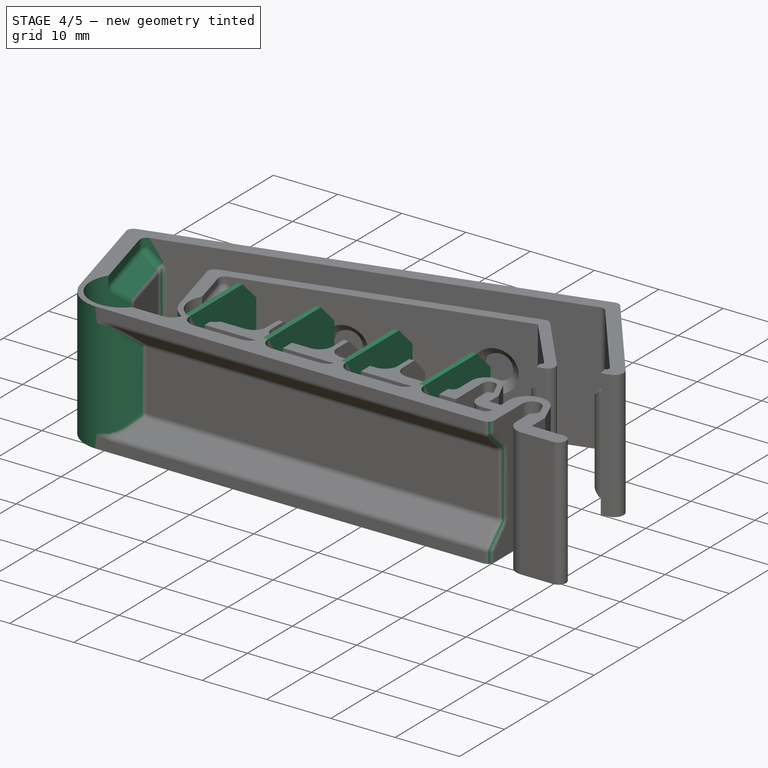
[diagram: stage 4 of 5 — iso view after this stage's code; geometry added in this stage tinted green]
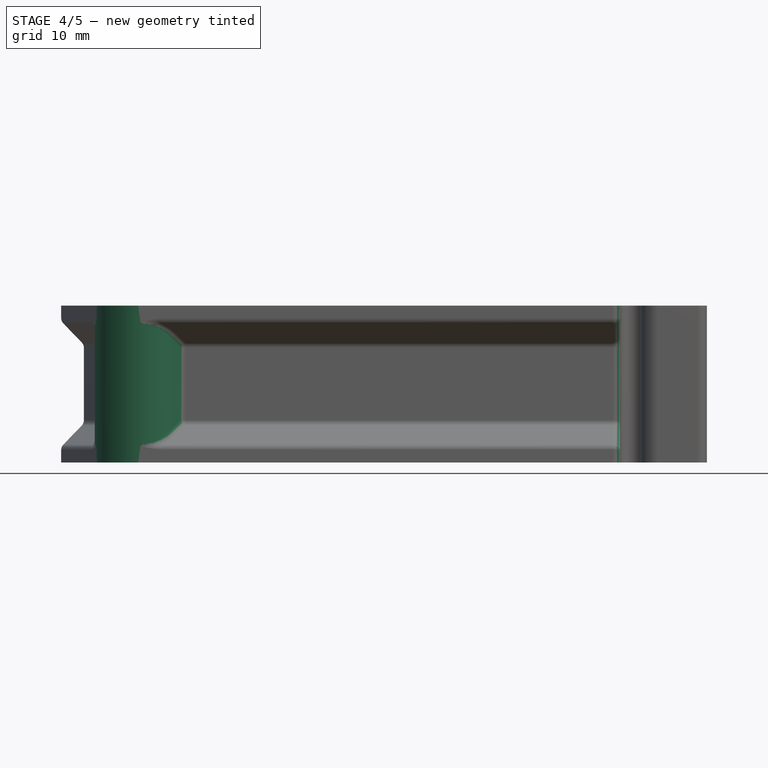
[diagram: stage 4 of 5 — front view after this stage's code; geometry added in this stage tinted green]
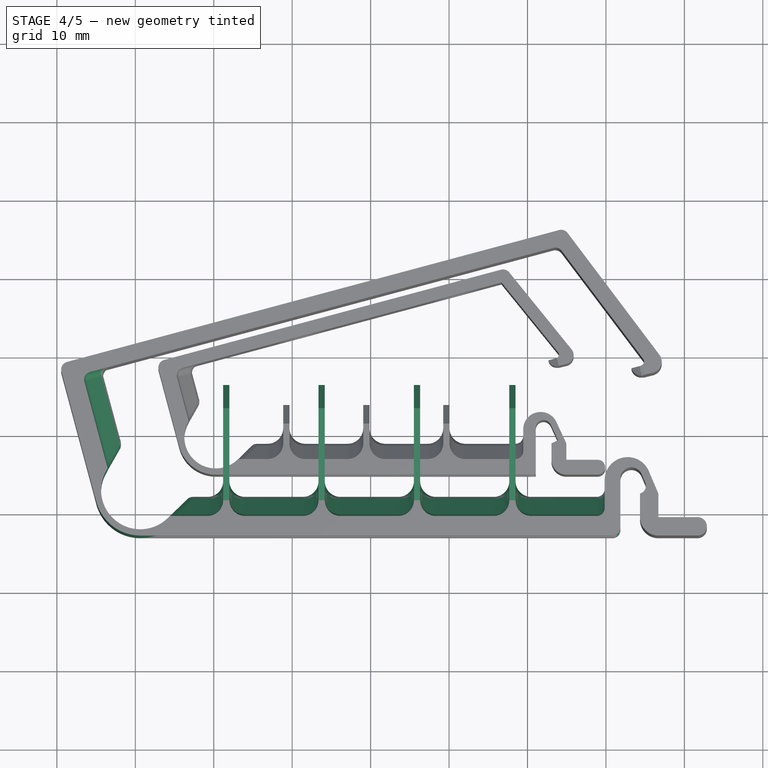
[diagram: stage 4 of 5 — top view after this stage's code; geometry added in this stage tinted green]
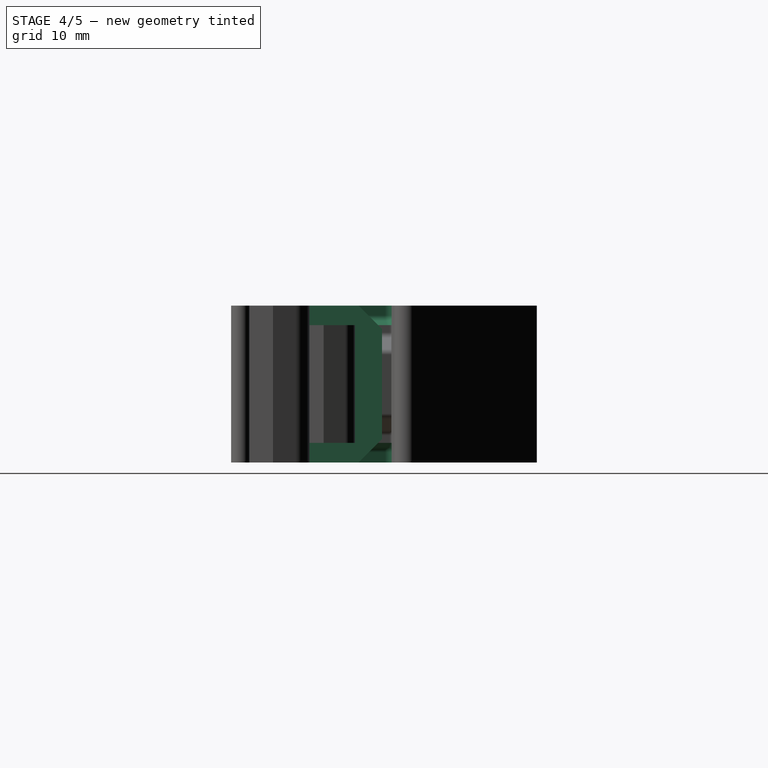
[diagram: stage 4 of 5 — right view after this stage's code; geometry added in this stage tinted green]
FEATURE [PartDesign::Pad] Pad007  label="_B60_HingeAdd"
  BaseFeature = -> SubtractivePipe003
  Direction = (0,0,1)
  Length = 20
  Length2 = 10
  Midplane = true
  Profile = -> Sketch028
  ReferenceAxis = -> Sketch028 [N_Axis]
  Refine = true
  Suppressed = false
  Type = 0
  expr: Length = <<_B60_Base>>.Length
FEATURE [PartDesign::Plane] DatumPlane010  label="B60_SeparatorBasePlane"
  AttachmentOffset = pos=(0,0,-0.4) rot=(0,0,1;0rad)
  AttachmentSupport = -> [Sketch025]
  Length = 60
  MapMode = 7
  Placement = pos=(30.2386,-20.5,0) rot=(0.57735,-0.57735,-0.57735;2.0944rad)
  ResizeMode = 0
  Width = 60
FEATURE [Sketcher::SketchObject] Sketch033  label="B60_Separator"
  ArcFitTolerance = 0
  AttachmentSupport = -> [DatumPlane010]
  ExternalGeometry = -> [Sketch023,Sketch021]
  FullyConstrained = true
  MakeInternals = false
  MapMode = 5
  Placement = pos=(30.2386,-20.5,0) rot=(0.57735,-0.57735,-0.57735;2.0944rad)
  expr: Constraints[0] = <<_B60_Base>>.Length
  sketch-geometry (10):
    g0: LineSegment StartX=2.5 StartY=10 StartZ=0 EndX=-13.7409 EndY=10 EndZ=0
    g1: LineSegment StartX=-13.7409 StartY=10 StartZ=0 EndX=-16.7409 EndY=7 EndZ=0
    g2: LineSegment StartX=-16.7409 StartY=7 StartZ=0 EndX=-16.7409 EndY=-7 EndZ=0
    g3: LineSegment StartX=-16.7409 StartY=-7 StartZ=0 EndX=-13.7409 EndY=-10 EndZ=0
    g4: LineSegment StartX=-13.7409 StartY=-10 StartZ=0 EndX=2.5 EndY=-10 EndZ=0
    g5: LineSegment StartX=-0.5 StartY=5 StartZ=0 EndX=-0.5 EndY=-5 EndZ=0
    g6: LineSegment StartX=2.5 StartY=10 StartZ=0 EndX=-0.5 EndY=5 EndZ=0
    g7: LineSegment StartX=2.5 StartY=-10 StartZ=0 EndX=-0.5 EndY=-5 EndZ=0
    g8: LineSegment [constr] StartX=2.5 StartY=10 StartZ=0 EndX=2.5 EndY=-10 EndZ=0
    g9: LineSegment [constr] StartX=-16.7409 StartY=-9.2e-15 StartZ=0 EndX=-18.7409 EndY=-9.2e-15 EndZ=0
  constraints (26):
    c: DistanceY(g4,g0) = 20
    c: Horizontal(g0)
    c: Coincident(g0,g1)
    c: Coincident(g1,g2)
    c: Coincident(g2,g3)
    c: Coincident(g3,g4)
    c: Horizontal(g4)
    c: Equal(g0,g4)
    c: Coincident(g5,g-4)
    c: Coincident(g5,g-3)
    c: Coincident(g6,g0)
    c: Coincident(g6,g5)
    c: Coincident(g7,g4)
    c: Coincident(g7,g5)
    c: Coincident(g8,g0)
    c: Coincident(g8,g4)
    c: Equal(g3,g-4)
    c: Parallel(g3,g-4)
    c: Symmetric(g4,g0,g-5)
    c: Parallel(g1,g-3)
    c: Parallel(g2,g5)
    c: Parallel(g5,g8)
    c: PointOnObject(g9,g2)
    c: Coincident(g9,g-6)
    c: DistanceX(g9,g9) = 2
    c: Horizontal(g9)
FEATURE [PartDesign::ShapeBinder] ShapeBinder008
  Support = -> [Sketch025]
  TraceSupport = false
FEATURE [PartDesign::SubtractivePipe] SubtractivePipe004  label="_B60_WingSide1Cut"
  AuxilleryCurvelinear = true
  AuxillerySpineTangent = false
  BaseFeature = -> Pad007
  Binormal = (0,0,0)
  Mode = 0
  Profile = -> Sketch026
  Refine = true
  Spine = -> ShapeBinder008
  SpineTangent = false
  Suppressed = false
  Transformation = 0
  Transition = 0
FEATURE [PartDesign::SubtractivePipe] SubtractivePipe005  label="_B60_WingSide2Cut"
  AuxilleryCurvelinear = true
  AuxillerySpineTangent = false
  BaseFeature = -> SubtractivePipe004
  Binormal = (0,0,0)
  Mode = 0
  Profile = -> Sketch027
  Refine = true
  Spine = -> ShapeBinder008
  SpineTangent = false
  Suppressed = false
  Transformation = 0
  Transition = 0
FEATURE [PartDesign::Pocket] Pocket007  label="_B60_HingeSub"
  BaseFeature = -> SubtractivePipe005
  Direction = (0,0,-1)
  Length = 5
  Length2 = 5
  Midplane = true
  Profile = -> Sketch029
  ReferenceAxis = -> Sketch029 [N_Axis]
  Refine = true
  Suppressed = false
  Type = 1
FEATURE [PartDesign::Fillet] Fillet003
  Base = -> Pocket007 [Face43,Face44,Face42,Edge90,Edge86,Face47,Face49,Face45,Edge103,Edge107,Face1,Face55,Face5,Face3,Edge10,Edge7,Edge129,Edge132,Edge85,Edge127,Edge125,Edge133,Edge135,Edge130,Edge139,Edge131,Edge110]
  BaseFeature = -> Pocket007
  Radius = 1
  SupportTransform = false
  Suppressed = false
  UseAllEdges = false
FEATURE [PartDesign::Body] Body004  label="Base_60"
  AllowCompound = false
  Group = -> [Sketch021,Sketch025,DatumPlane009,DatumPlane010,Sketch033,Sketch022,Pad006,Sketch030,Pad008,Chamfer003,Sketch031,Pocket008,Pocket009,Sketch032,Sketch023,Sketch024,DatumPlane008,SubtractivePipe003,Sketch028,Pad007,ShapeBinder008,Sketch026,Sketch027,SubtractivePipe004,SubtractivePipe005,Sketch029,Pocket007,Fillet003]
  Origin = -> Origin004
  Tip = -> Fillet003
FEATURE [PartDesign::FeatureBase] Clone003
  BaseFeature = -> Body004
  Suppressed = false
FEATURE [PartDesign::ShapeBinder] ShapeBinder009  label="60x5_separator"
  Placement = pos=(30.2386,-20.5,0) rot=(0.57735,-0.57735,-0.57735;2.0944rad)
  Support = -> [Sketch033]
  TraceSupport = false
FEATURE [PartDesign::ShapeBinder] ShapeBinder010  label="60x5_separatorBasePlane"
  Placement = pos=(30.2386,-20.5,0) rot=(0.57735,-0.57735,-0.57735;2.0944rad)
  Support = -> [DatumPlane010]
  TraceSupport = false
FEATURE [Sketcher::SketchObject] Sketch034
  ArcFitTolerance = 1e-06
  AttachmentOffset = pos=(0,0,12.16) rot=(0,0,1;0rad)
  AttachmentSupport = -> [ShapeBinder010]
  ExternalGeometry = -> [ShapeBinder009]
  FullyConstrained = true
  MakeInternals = false
  MapMode = 5
  Placement = pos=(18.0786,-20.5,0) rot=(0.57735,-0.57735,-0.57735;2.0944rad)
  expr: .AttachmentOffset.Base.z = (<<B60_Template>>.Constraints.Lb + <<Spreadsheet>>.Ts) / 5
  sketch-geometry (8):
    g0: LineSegment StartX=-16.7409 StartY=7 StartZ=0 EndX=-13.7409 EndY=10 EndZ=0
    g1: LineSegment StartX=-13.7409 StartY=10 StartZ=0 EndX=2.5 EndY=10 EndZ=0
    g2: LineSegment StartX=2.5 StartY=10 StartZ=0 EndX=-0.5 EndY=5 EndZ=0
    g3: LineSegment StartX=-0.5 StartY=5 StartZ=0 EndX=-0.5 EndY=-5 EndZ=0
    g4: LineSegment StartX=-0.5 StartY=-5 StartZ=0 EndX=2.5 EndY=-10 EndZ=0
    g5: LineSegment StartX=2.5 StartY=-10 StartZ=0 EndX=-13.7409 EndY=-10 EndZ=0
    g6: LineSegment StartX=-13.7409 StartY=-10 StartZ=0 EndX=-16.7409 EndY=-7 EndZ=0
    g7: LineSegment StartX=-16.7409 StartY=-7 StartZ=0 EndX=-16.7409 EndY=7 EndZ=0
  constraints (16):
    c: Coincident(g-3,g0)
    c: Coincident(g0,g-4)
    c: Coincident(g0,g1)
    c: Coincident(g1,g-4)
    c: Coincident(g1,g2)
    c: Coincident(g2,g-5)
    c: Coincident(g2,g3)
    c: Coincident(g3,g-5)
    c: Coincident(g3,g4)
    c: Coincident(g4,g-6)
    c: Coincident(g4,g5)
    c: Coincident(g5,g-6)
    c: Coincident(g5,g6)
    c: Coincident(g6,g-3)
    c: Coincident(g6,g7)
    c: Coincident(g7,g0)
FEATURE [PartDesign::Pad] Pad009
  BaseFeature = -> Clone003
  Direction = (-1,0,0)
  Length = 0.8
  Length2 = 10
  Midplane = true
  Profile = -> Sketch034
  ReferenceAxis = -> Sketch034 [N_Axis]
  Refine = true
  Suppressed = false
  Type = 0
  expr: Length = <<Spreadsheet>>.Ts
FEATURE [PartDesign::LinearPattern] LinearPattern
  BaseFeature = -> Pad009
  Direction = -> Sketch034 [N_Axis]
  Length = 36.48
  Mode = 0
  Occurrences = 4
  Offset = 12.16
  Originals = -> [Pad009]
  Refine = true
  Suppressed = false
  TransformMode = 0
  expr: Length = (<<B60_Template>>.Constraints.Lb + <<Spreadsheet>>.Ts) * (<<Spreadsheet>>.Cs5 - 2) / <<Spreadsheet>>.Cs5
  expr: Occurrences = <<Spreadsheet>>.Cs5 - 1
FEATURE [PartDesign::ShapeBinder] ShapeBinder011  label="60x5_screwed_T"
  Support = -> [Sketch021]
  TraceSupport = false
FEATURE [PartDesign::Plane] DatumPlane011
  AttachmentSupport = -> [ShapeBinder011]
  Length = 95.1338
  MapMode = 7
  Placement = pos=(29.8386,-18,0) rot=(1,0,0;1.5708rad)
  ResizeMode = 0
  Width = 62.83
FEATURE [Sketcher::SketchObject] Sketch035
  ArcFitTolerance = 1e-06
  AttachmentOffset = pos=(0,0,-2) rot=(0,0,1;0rad)
  AttachmentSupport = -> [DatumPlane011]
  ExternalGeometry = -> [ShapeBinder011]
  FullyConstrained = true
  MakeInternals = false
  MapMode = 5
  Placement = pos=(29.8386,-16,-4e-16) rot=(1,0,0;1.5708rad)
  expr: .AttachmentOffset.Base.z = -<<Fillet004>>.Radius
  expr: Constraints[1] = (<<B60_Template>>.Constraints.Lb + <<Spreadsheet>>.Ts) / 2 - <<Spreadsheet>>.Ts / 2
  sketch-geometry (1):
    g0: Circle CenterX=-30 CenterY=0 CenterZ=0 NormalX=0 NormalY=0 NormalZ=1 AngleXU=0 Radius=4.2
  constraints (3):
    c: PointOnObject(g0,g-3)
    c: DistanceX(g0,g-3) = 30
    c: Radius(g0) = 4.2
FEATURE [PartDesign::Plane] DatumPlane012
  AttachmentSupport = -> [ShapeBinder011]
  Length = 106.037
  MapMode = 7
  Placement = pos=(-34.327,-1.75906,0) rot=(0.983106,0.129428,0.129428;1.58783rad)
  ResizeMode = 0
  Width = 63.5971
FEATURE [Sketcher::SketchObject] Sketch036
  ArcFitTolerance = 1e-06
  AttachmentSupport = -> [DatumPlane012]
  ExternalGeometry = -> [ShapeBinder011]
  FullyConstrained = true
  MakeInternals = false
  MapMode = 5
  Placement = pos=(-34.327,-1.75906,0) rot=(0.983106,0.129428,0.129428;1.58783rad)
  expr: Constraints[2] = <<B60_Template>>.Constraints.Lb / 2
  sketch-geometry (1):
    g0: Circle CenterX=30 CenterY=-9e-16 CenterZ=0 NormalX=0 NormalY=0 NormalZ=1 AngleXU=0 Radius=2
  constraints (3):
    c: Radius(g0) = 2
    c: PointOnObject(g0,g-3)
    c: DistanceX(g0,g-4) = 30
FEATURE [PartDesign::Fillet] Fillet004
  Base = -> LinearPattern [Edge180,Edge516,Edge482,Edge24,Edge8,Edge447,Edge501,Edge391]
  BaseFeature = -> LinearPattern
  Radius = 2
  SupportTransform = false
  Suppressed = false
  UseAllEdges = false
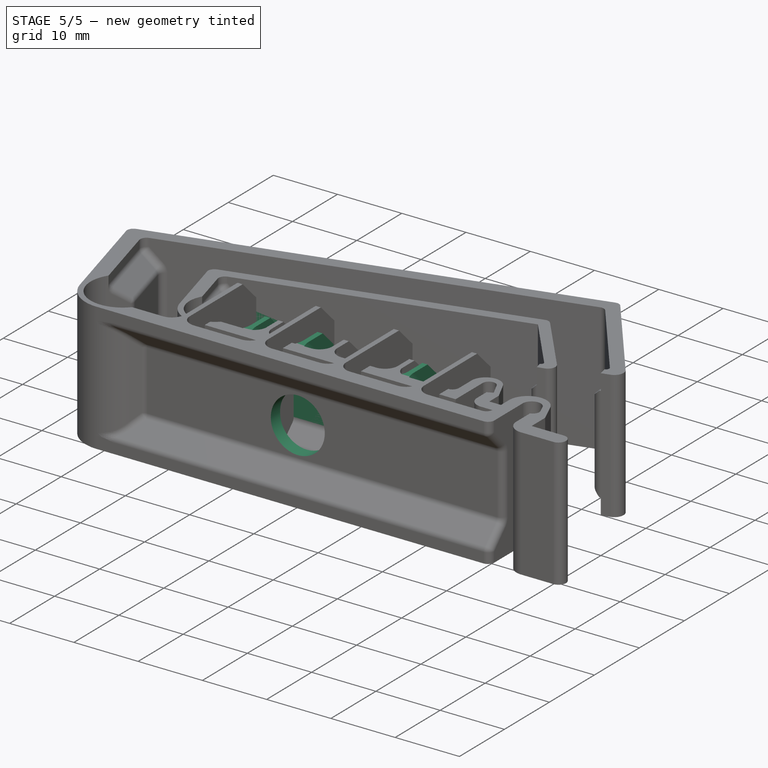
[diagram: stage 5 of 5 — iso view after this stage's code; geometry added in this stage tinted green]
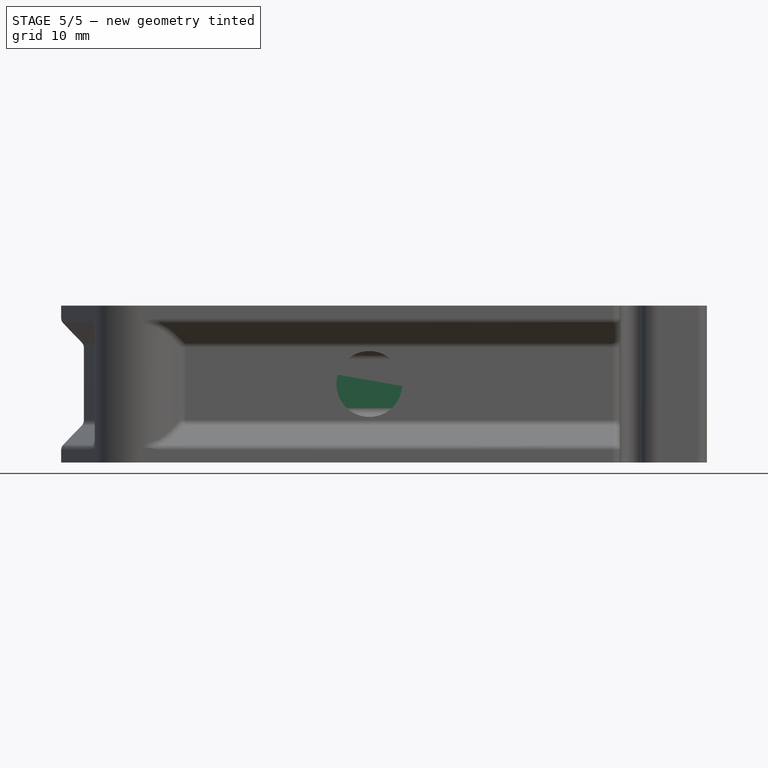
[diagram: stage 5 of 5 — front view after this stage's code; geometry added in this stage tinted green]
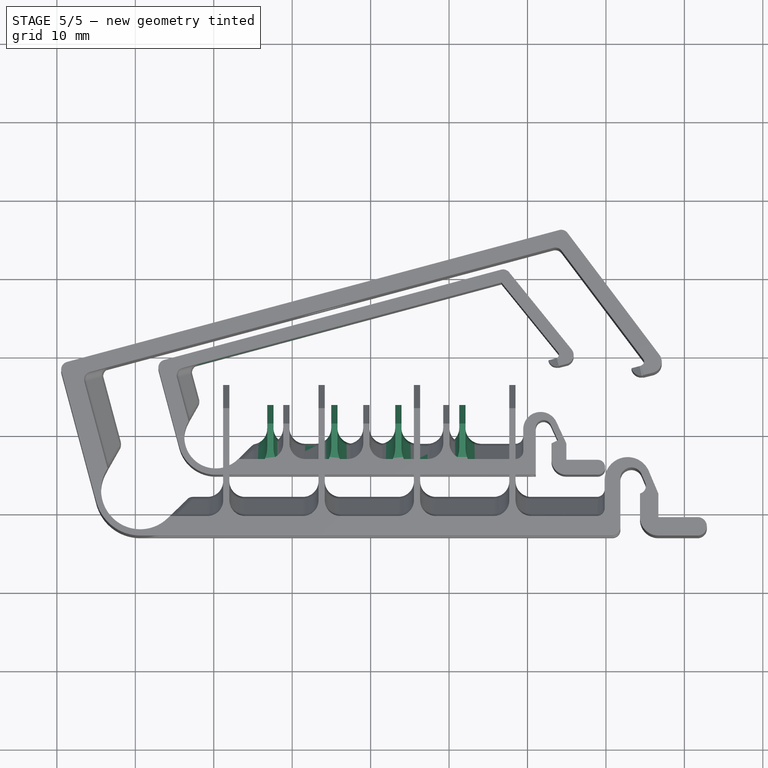
[diagram: stage 5 of 5 — top view after this stage's code; geometry added in this stage tinted green]
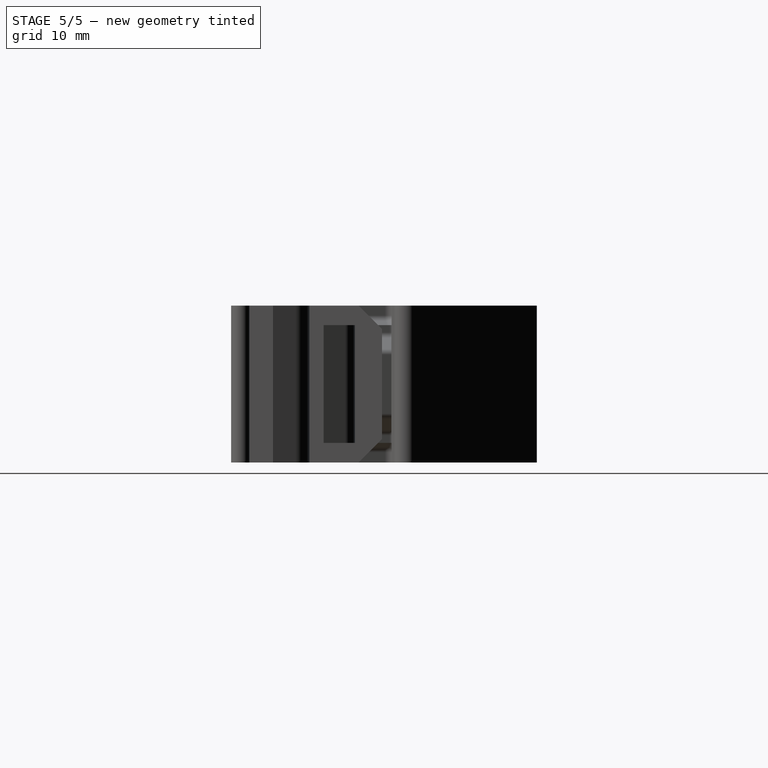
[diagram: stage 5 of 5 — right view after this stage's code; geometry added in this stage tinted green]
FEATURE [PartDesign::FeatureBase] Clone002
  BaseFeature = -> Body
  Suppressed = false
FEATURE [PartDesign::ShapeBinder] ShapeBinder006  label="40x4_Separator001"
  Placement = pos=(19.8548,-13.2,0) rot=(0.57735,-0.57735,-0.57735;2.0944rad)
  Support = -> [Sketch013]
  TraceSupport = false
FEATURE [PartDesign::ShapeBinder] ShapeBinder007  label="40x4_SeparatorBasePlane001"
  Placement = pos=(19.8548,-13.2,0) rot=(0.57735,-0.57735,-0.57735;2.0944rad)
  Support = -> [DatumPlane003]
  TraceSupport = false
FEATURE [Sketcher::SketchObject] Sketch020
  ArcFitTolerance = 0
  AttachmentOffset = pos=(0,0,8.16) rot=(0,0,1;0rad)
  AttachmentSupport = -> [ShapeBinder007]
  ExternalGeometry = -> [ShapeBinder006]
  FullyConstrained = true
  MakeInternals = false
  MapMode = 5
  Placement = pos=(11.6948,-13.2,0) rot=(0.57735,-0.57735,-0.57735;2.0944rad)
  expr: .AttachmentOffset.Base.z = (<<B40_Template>>.Constraints.Lb + <<Spreadsheet>>.Ts) / 5
  sketch-geometry (8):
    g0: LineSegment StartX=-0.4 StartY=3.5 StartZ=0 EndX=2 EndY=7.5 EndZ=0
    g1: LineSegment StartX=2 StartY=7.5 StartZ=0 EndX=-4.53292 EndY=7.5 EndZ=0
    g2: LineSegment StartX=-4.53292 StartY=7.5 StartZ=0 EndX=-6.93292 EndY=5.1 EndZ=0
    g3: LineSegment StartX=-6.93292 StartY=5.1 StartZ=0 EndX=-6.93292 EndY=-5.1 EndZ=0
    g4: LineSegment StartX=-6.93292 StartY=-5.1 StartZ=0 EndX=-4.53292 EndY=-7.5 EndZ=0
    g5: LineSegment StartX=-4.53292 StartY=-7.5 StartZ=0 EndX=2 EndY=-7.5 EndZ=0
    g6: LineSegment StartX=2 StartY=-7.5 StartZ=0 EndX=-0.4 EndY=-3.5 EndZ=0
    g7: LineSegment StartX=-0.4 StartY=-3.5 StartZ=0 EndX=-0.4 EndY=3.5 EndZ=0
  constraints (16):
    c: Coincident(g-4,g0)
    c: Coincident(g0,g-6)
    c: Coincident(g0,g1)
    c: Coincident(g1,g-6)
    c: Coincident(g1,g2)
    c: Coincident(g2,g-3)
    c: Coincident(g2,g3)
    c: Coincident(g3,g-3)
    c: Coincident(g3,g4)
    c: Coincident(g4,g-5)
    c: Coincident(g4,g5)
    c: Coincident(g5,g-5)
    c: Coincident(g5,g6)
    c: Coincident(g6,g-4)
    c: Coincident(g6,g7)
    c: Coincident(g7,g0)
FEATURE [PartDesign::Pad] Pad005
  BaseFeature = -> Clone002
  Direction = (-1,0,0)
  Length = 0.8
  Length2 = 10
  Midplane = true
  Profile = -> Sketch020
  ReferenceAxis = -> Sketch020 [N_Axis]
  Suppressed = false
  Type = 0
  expr: Length = <<Spreadsheet>>.Ts
FEATURE [PartDesign::LinearPattern] LinearPattern002
  BaseFeature = -> Pad005
  Direction = -> Sketch020 [N_Axis]
  Length = 24.48
  Mode = 0
  Occurrences = 4
  Offset = 8.16
  Originals = -> [Pad005]
  Refine = true
  Suppressed = false
  TransformMode = 0
  expr: Length = (<<B40_Template>>.Constraints.Lb + <<Spreadsheet>>.Ts) * (<<Spreadsheet>>.Cs5 - 2) / <<Spreadsheet>>.Cs5
  expr: Occurrences = <<Spreadsheet>>.Cs5 - 1
FEATURE [PartDesign::Fillet] Fillet002
  Base = -> LinearPattern002 [Edge191,Edge468,Edge443,Edge412,Edge395,Edge426,Edge457,Edge12]
  BaseFeature = -> LinearPattern002
  Radius = 2
  SupportTransform = false
  Suppressed = false
  UseAllEdges = false
FEATURE [PartDesign::Body] Body005  label="60x5"
  AllowCompound = false
  Group = -> [Clone003,ShapeBinder009,ShapeBinder010,Sketch034,Pad009,LinearPattern,Fillet004]
  Origin = -> Origin005
  Tip = -> Fillet004
FEATURE [PartDesign::FeatureBase] Clone004
  BaseFeature = -> Body005
  Suppressed = false
FEATURE [PartDesign::Pocket] Pocket010
  BaseFeature = -> Clone004
  Direction = (-1.7e-15,1,-2e-16)
  Length = 5
  Length2 = 5
  Profile = -> Sketch035
  ReferenceAxis = -> Sketch035 [N_Axis]
  Reversed = true
  Suppressed = false
  Type = 1
FEATURE [PartDesign::Pocket] Pocket011
  BaseFeature = -> Pocket010
  Direction = (-0.258819,0.965926,1e-16)
  Length = 5
  Length2 = 5
  Profile = -> Sketch036
  ReferenceAxis = -> Sketch036 [N_Axis]
  Suppressed = false
  Type = 1
FEATURE [PartDesign::Chamfer] Chamfer004
  Angle = 45
  Base = -> Pocket011 [Edge206]
  BaseFeature = -> Pocket011
  ChamferType = 0
  FlipDirection = false
  Size = 1.6
  Size2 = 1
  SupportTransform = false
  Suppressed = false
  UseAllEdges = false
  expr: Size = <<B60_Template>>.Constraints.Tl - 0.4 mm
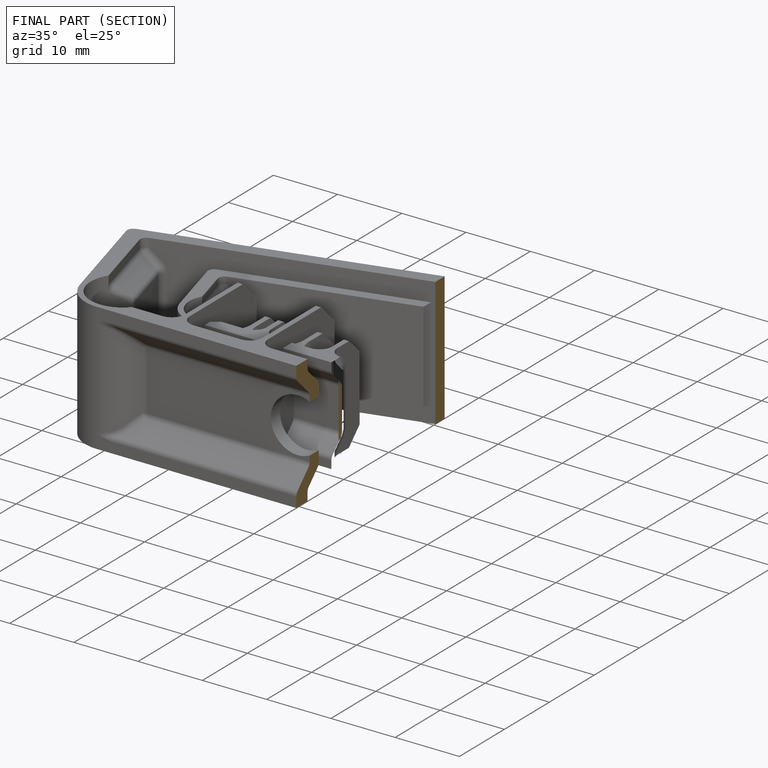
[diagram: finished part — half-section view (interior)]
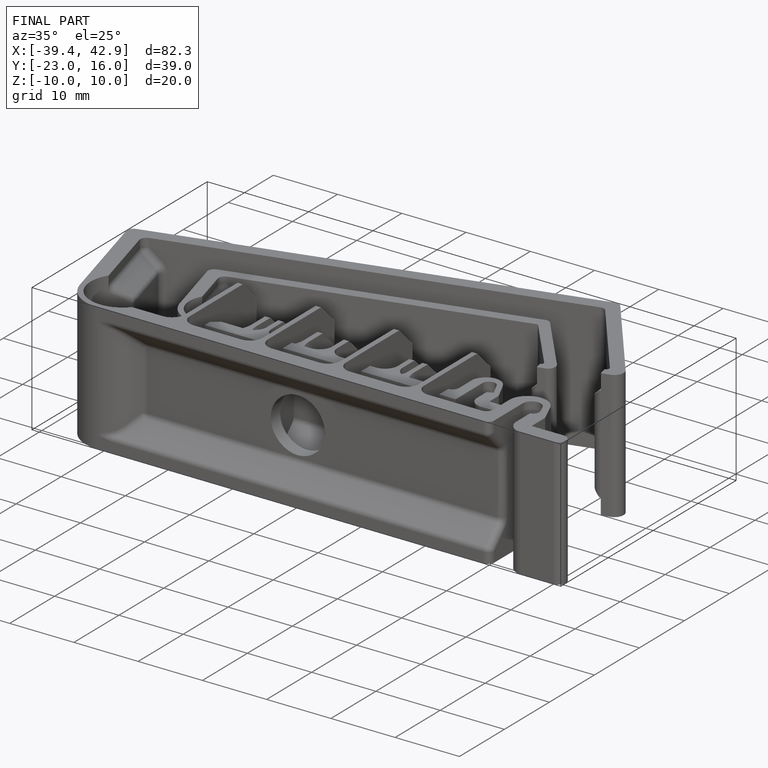
[diagram: finished part — iso view with bounding-box wireframe]
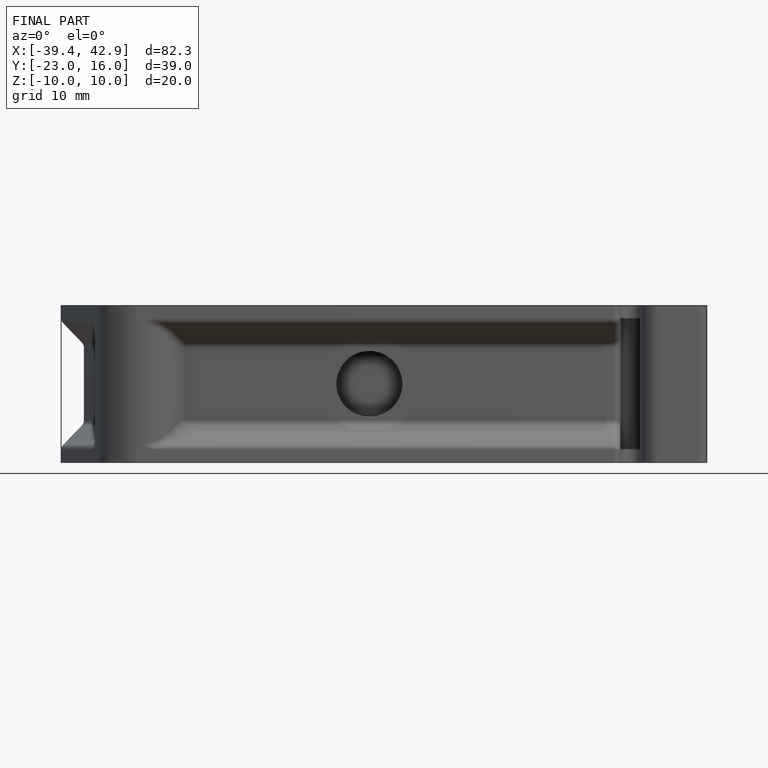
[diagram: finished part — front view with bounding-box wireframe]
